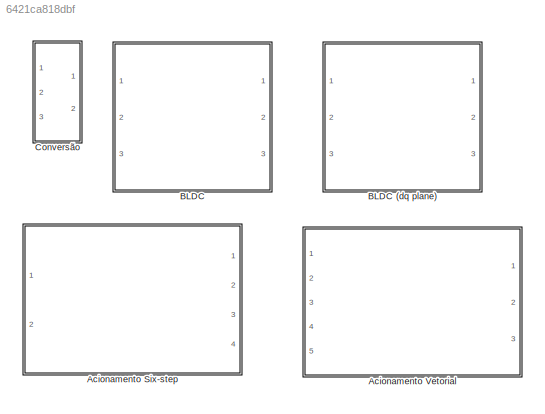
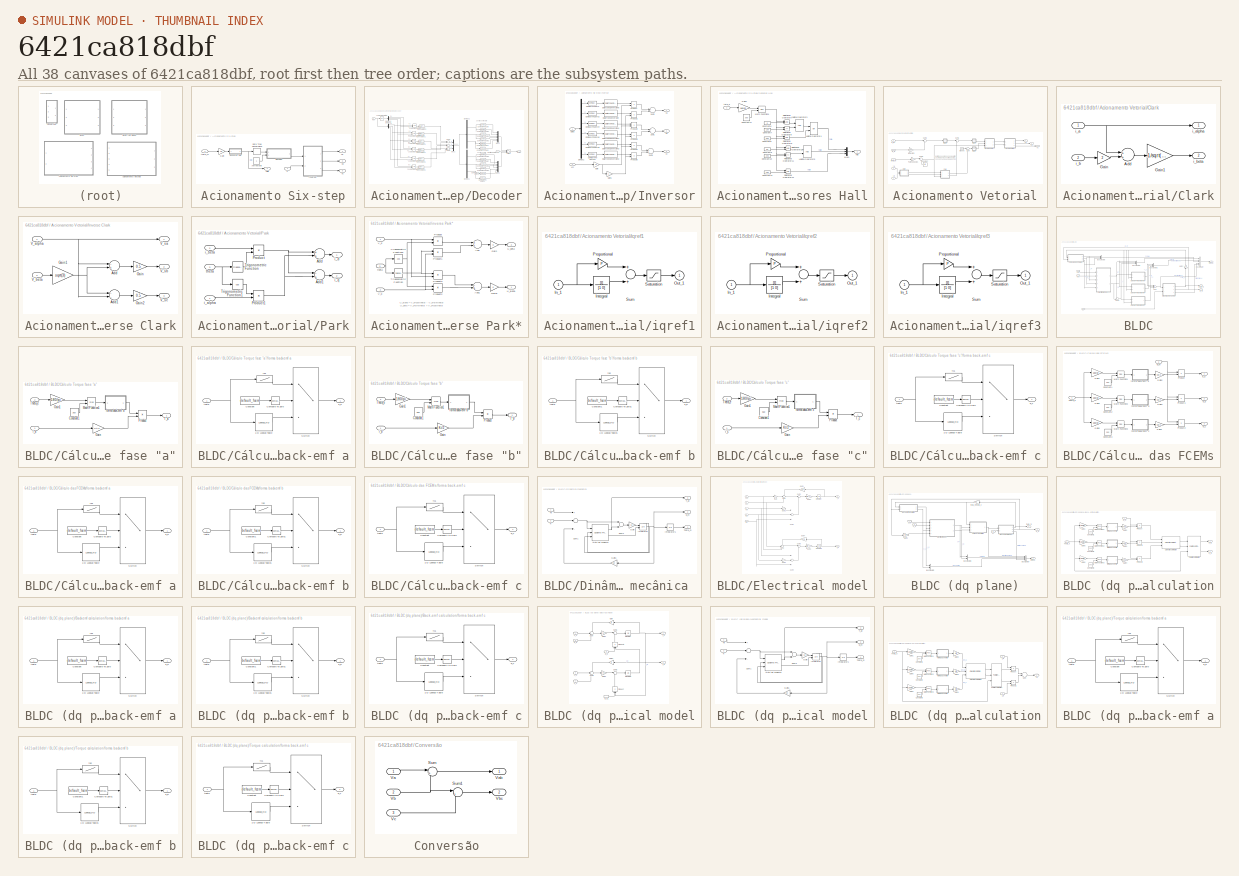
[diagram: thumbnail index - all 38 canvases of the model, root first then tree order]
MODEL slx_6421ca818dbf
KIND library
BLOCK [SubSystem] Acionamento Six-step
  FunctionWithSeparateData = off
  MaskHideContents = off
  MinAlgLoopOccurrences = off
  Opaque = off
  Ports = [2, 4]
  PropExecContextOutsideSubsystem = off
  RTWSystemCode = Auto
  RequestExecContextInheritance = off
BLOCK [Constant] Acionamento Six-step/Anti-horário
BLOCK [DataTypeConversion] Acionamento Six-step/Data Type Conversion3
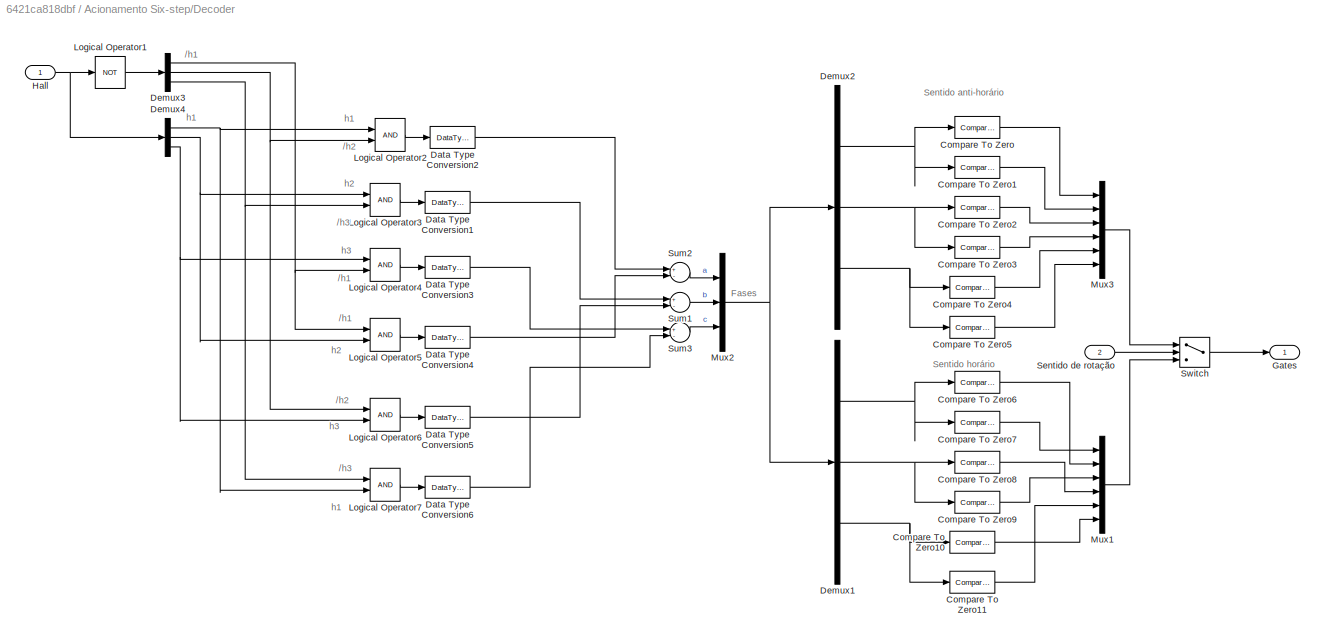
BLOCK [SubSystem] Acionamento Six-step/Decoder
  FunctionWithSeparateData = off
  MaskHideContents = off
  MinAlgLoopOccurrences = off
  Opaque = off
  Ports = [2, 1]
  PropExecContextOutsideSubsystem = off
  RTWSystemCode = Auto
  RequestExecContextInheritance = off
BLOCK [Reference] Acionamento Six-step/Decoder/Compare To Zero  REF=simulink/Logic and Bit
Operations/Compare
To Zero
  OutDataTypeStr = boolean
  Ports = [1, 1]
  SourceBlock = simulink/Logic and Bit\nOperations/Compare\nTo Zero
  SourceType = Compare To Zero
  ZeroCross = off
  relop = >
BLOCK [Reference] Acionamento Six-step/Decoder/Compare To Zero1  REF=simulink/Logic and Bit
Operations/Compare
To Zero
  OutDataTypeStr = boolean
  Ports = [1, 1]
  SourceBlock = simulink/Logic and Bit\nOperations/Compare\nTo Zero
  SourceType = Compare To Zero
  ZeroCross = off
  relop = <
BLOCK [Reference] Acionamento Six-step/Decoder/Compare To Zero10  REF=simulink/Logic and Bit
Operations/Compare
To Zero
  OutDataTypeStr = boolean
  Ports = [1, 1]
  SourceBlock = simulink/Logic and Bit\nOperations/Compare\nTo Zero
  SourceType = Compare To Zero
  ZeroCross = off
  relop = >
BLOCK [Reference] Acionamento Six-step/Decoder/Compare To Zero11  REF=simulink/Logic and Bit
Operations/Compare
To Zero
  OutDataTypeStr = boolean
  Ports = [1, 1]
  SourceBlock = simulink/Logic and Bit\nOperations/Compare\nTo Zero
  SourceType = Compare To Zero
  ZeroCross = off
  relop = <
BLOCK [Reference] Acionamento Six-step/Decoder/Compare To Zero2  REF=simulink/Logic and Bit
Operations/Compare
To Zero
  OutDataTypeStr = boolean
  Ports = [1, 1]
  SourceBlock = simulink/Logic and Bit\nOperations/Compare\nTo Zero
  SourceType = Compare To Zero
  ZeroCross = off
  relop = >
BLOCK [Reference] Acionamento Six-step/Decoder/Compare To Zero3  REF=simulink/Logic and Bit
Operations/Compare
To Zero
  OutDataTypeStr = boolean
  Ports = [1, 1]
  SourceBlock = simulink/Logic and Bit\nOperations/Compare\nTo Zero
  SourceType = Compare To Zero
  ZeroCross = off
  relop = <
BLOCK [Reference] Acionamento Six-step/Decoder/Compare To Zero4  REF=simulink/Logic and Bit
Operations/Compare
To Zero
  OutDataTypeStr = boolean
  Ports = [1, 1]
  SourceBlock = simulink/Logic and Bit\nOperations/Compare\nTo Zero
  SourceType = Compare To Zero
  ZeroCross = off
  relop = >
BLOCK [Reference] Acionamento Six-step/Decoder/Compare To Zero5  REF=simulink/Logic and Bit
Operations/Compare
To Zero
  OutDataTypeStr = boolean
  Ports = [1, 1]
  SourceBlock = simulink/Logic and Bit\nOperations/Compare\nTo Zero
  SourceType = Compare To Zero
  ZeroCross = off
  relop = <
BLOCK [Reference] Acionamento Six-step/Decoder/Compare To Zero6  REF=simulink/Logic and Bit
Operations/Compare
To Zero
  OutDataTypeStr = boolean
  Ports = [1, 1]
  SourceBlock = simulink/Logic and Bit\nOperations/Compare\nTo Zero
  SourceType = Compare To Zero
  ZeroCross = off
  relop = >
BLOCK [Reference] Acionamento Six-step/Decoder/Compare To Zero7  REF=simulink/Logic and Bit
Operations/Compare
To Zero
  OutDataTypeStr = boolean
  Ports = [1, 1]
  SourceBlock = simulink/Logic and Bit\nOperations/Compare\nTo Zero
  SourceType = Compare To Zero
  ZeroCross = off
  relop = <
BLOCK [Reference] Acionamento Six-step/Decoder/Compare To Zero8  REF=simulink/Logic and Bit
Operations/Compare
To Zero
  OutDataTypeStr = boolean
  Ports = [1, 1]
  SourceBlock = simulink/Logic and Bit\nOperations/Compare\nTo Zero
  SourceType = Compare To Zero
  ZeroCross = off
  relop = >
BLOCK [Reference] Acionamento Six-step/Decoder/Compare To Zero9  REF=simulink/Logic and Bit
Operations/Compare
To Zero
  OutDataTypeStr = boolean
  Ports = [1, 1]
  SourceBlock = simulink/Logic and Bit\nOperations/Compare\nTo Zero
  SourceType = Compare To Zero
  ZeroCross = off
  relop = <
BLOCK [DataTypeConversion] Acionamento Six-step/Decoder/Data Type Conversion1
  RndMeth = Floor
  SaturateOnIntegerOverflow = off
BLOCK [DataTypeConversion] Acionamento Six-step/Decoder/Data Type Conversion2
  RndMeth = Floor
  SaturateOnIntegerOverflow = off
BLOCK [DataTypeConversion] Acionamento Six-step/Decoder/Data Type Conversion3
  RndMeth = Floor
  SaturateOnIntegerOverflow = off
BLOCK [DataTypeConversion] Acionamento Six-step/Decoder/Data Type Conversion4
  RndMeth = Floor
  SaturateOnIntegerOverflow = off
BLOCK [DataTypeConversion] Acionamento Six-step/Decoder/Data Type Conversion5
  RndMeth = Floor
  SaturateOnIntegerOverflow = off
BLOCK [DataTypeConversion] Acionamento Six-step/Decoder/Data Type Conversion6
  RndMeth = Floor
  SaturateOnIntegerOverflow = off
BLOCK [Demux] Acionamento Six-step/Decoder/Demux1
  DisplayOption = bar
  Outputs = 3
  Ports = [1, 3]
BLOCK [Demux] Acionamento Six-step/Decoder/Demux2
  DisplayOption = bar
  Outputs = 3
  Ports = [1, 3]
BLOCK [Demux] Acionamento Six-step/Decoder/Demux3
  DisplayOption = bar
  Outputs = 3
  Ports = [1, 3]
BLOCK [Demux] Acionamento Six-step/Decoder/Demux4
  DisplayOption = bar
  Outputs = 3
  Ports = [1, 3]
BLOCK [Outport] Acionamento Six-step/Decoder/Gates
  IconDisplay = Port number
BLOCK [Inport] Acionamento Six-step/Decoder/Hall 
  IconDisplay = Port number
BLOCK [Logic] Acionamento Six-step/Decoder/Logical Operator1
  AllPortsSameDT = off
  Operator = NOT
  OutDataTypeStr = boolean
  Ports = [1, 1]
BLOCK [Logic] Acionamento Six-step/Decoder/Logical Operator2
  AllPortsSameDT = off
  OutDataTypeStr = boolean
  Ports = [2, 1]
BLOCK [Logic] Acionamento Six-step/Decoder/Logical Operator3
  AllPortsSameDT = off
  OutDataTypeStr = boolean
  Ports = [2, 1]
BLOCK [Logic] Acionamento Six-step/Decoder/Logical Operator4
  AllPortsSameDT = off
  OutDataTypeStr = boolean
  Ports = [2, 1]
BLOCK [Logic] Acionamento Six-step/Decoder/Logical Operator5
  AllPortsSameDT = off
  OutDataTypeStr = boolean
  Ports = [2, 1]
BLOCK [Logic] Acionamento Six-step/Decoder/Logical Operator6
  AllPortsSameDT = off
  OutDataTypeStr = boolean
  Ports = [2, 1]
BLOCK [Logic] Acionamento Six-step/Decoder/Logical Operator7
  AllPortsSameDT = off
  OutDataTypeStr = boolean
  Ports = [2, 1]
BLOCK [Mux] Acionamento Six-step/Decoder/Mux1
  DisplayOption = bar
  Inputs = 6
  Ports = [6, 1]
BLOCK [Mux] Acionamento Six-step/Decoder/Mux2
  DisplayOption = bar
  Inputs = 3
  Ports = [3, 1]
BLOCK [Mux] Acionamento Six-step/Decoder/Mux3
  DisplayOption = bar
  Inputs = 6
  Ports = [6, 1]
BLOCK [Inport] Acionamento Six-step/Decoder/Sentido de rotação
  IconDisplay = Port number
  Port = 2
BLOCK [Sum] Acionamento Six-step/Decoder/Sum1
  InputSameDT = off
  Inputs = +-
  OutDataTypeStr = double
  Ports = [2, 1]
  SaturateOnIntegerOverflow = off
BLOCK [Sum] Acionamento Six-step/Decoder/Sum2
  InputSameDT = off
  Inputs = +-
  OutDataTypeStr = double
  Ports = [2, 1]
  SaturateOnIntegerOverflow = off
BLOCK [Sum] Acionamento Six-step/Decoder/Sum3
  InputSameDT = off
  Inputs = +-
  OutDataTypeStr = double
  Ports = [2, 1]
  SaturateOnIntegerOverflow = off
BLOCK [Switch] Acionamento Six-step/Decoder/Switch
  Criteria = u2 > Threshold
  InputSameDT = off
  SaturateOnIntegerOverflow = off
BLOCK [Gain] Acionamento Six-step/Gain
  Gain = P/2
  OutDataTypeStr = Inherit: Inherit via internal rule
  ParamDataTypeStr = Inherit: Inherit via internal rule
  SaturateOnIntegerOverflow = off
BLOCK [Outport] Acionamento Six-step/Halls
  IconDisplay = Port number
  Port = 4
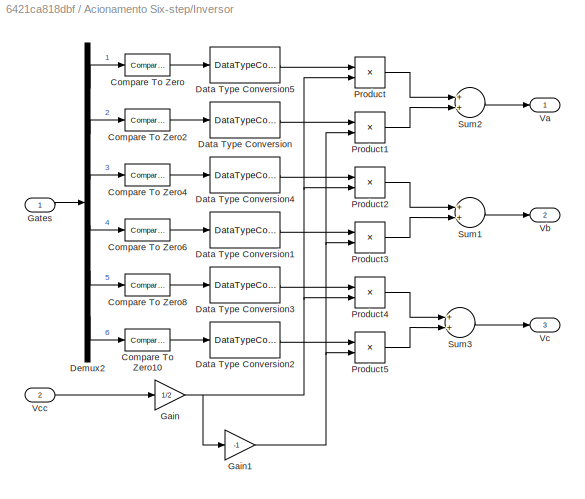
BLOCK [SubSystem] Acionamento Six-step/Inversor
  FunctionWithSeparateData = off
  MaskHideContents = off
  MinAlgLoopOccurrences = off
  Opaque = off
  Ports = [2, 3]
  PropExecContextOutsideSubsystem = off
  RTWSystemCode = Auto
  RequestExecContextInheritance = off
BLOCK [Reference] Acionamento Six-step/Inversor/Compare To Zero  REF=simulink/Logic and Bit
Operations/Compare
To Zero
  OutDataTypeStr = uint8
  Ports = [1, 1]
  SourceBlock = simulink/Logic and Bit\nOperations/Compare\nTo Zero
  SourceType = Compare To Zero
  ZeroCross = off
  relop = >
BLOCK [Reference] Acionamento Six-step/Inversor/Compare To Zero10  REF=simulink/Logic and Bit
Operations/Compare
To Zero
  OutDataTypeStr = boolean
  Ports = [1, 1]
  SourceBlock = simulink/Logic and Bit\nOperations/Compare\nTo Zero
  SourceType = Compare To Zero
  ZeroCross = off
  relop = >
BLOCK [Reference] Acionamento Six-step/Inversor/Compare To Zero2  REF=simulink/Logic and Bit
Operations/Compare
To Zero
  OutDataTypeStr = boolean
  Ports = [1, 1]
  SourceBlock = simulink/Logic and Bit\nOperations/Compare\nTo Zero
  SourceType = Compare To Zero
  ZeroCross = off
  relop = >
BLOCK [Reference] Acionamento Six-step/Inversor/Compare To Zero4  REF=simulink/Logic and Bit
Operations/Compare
To Zero
  OutDataTypeStr = uint8
  Ports = [1, 1]
  SourceBlock = simulink/Logic and Bit\nOperations/Compare\nTo Zero
  SourceType = Compare To Zero
  ZeroCross = off
  relop = >
BLOCK [Reference] Acionamento Six-step/Inversor/Compare To Zero6  REF=simulink/Logic and Bit
Operations/Compare
To Zero
  OutDataTypeStr = boolean
  Ports = [1, 1]
  SourceBlock = simulink/Logic and Bit\nOperations/Compare\nTo Zero
  SourceType = Compare To Zero
  ZeroCross = off
  relop = >
BLOCK [Reference] Acionamento Six-step/Inversor/Compare To Zero8  REF=simulink/Logic and Bit
Operations/Compare
To Zero
  OutDataTypeStr = boolean
  Ports = [1, 1]
  SourceBlock = simulink/Logic and Bit\nOperations/Compare\nTo Zero
  SourceType = Compare To Zero
  ZeroCross = off
  relop = >
BLOCK [DataTypeConversion] Acionamento Six-step/Inversor/Data Type Conversion
  OutDataTypeStr = double
  RndMeth = Floor
  SaturateOnIntegerOverflow = off
BLOCK [DataTypeConversion] Acionamento Six-step/Inversor/Data Type Conversion1
  OutDataTypeStr = double
  RndMeth = Floor
  SaturateOnIntegerOverflow = off
BLOCK [DataTypeConversion] Acionamento Six-step/Inversor/Data Type Conversion2
  OutDataTypeStr = double
  RndMeth = Floor
  SaturateOnIntegerOverflow = off
BLOCK [DataTypeConversion] Acionamento Six-step/Inversor/Data Type Conversion3
  OutDataTypeStr = double
  RndMeth = Floor
  SaturateOnIntegerOverflow = off
BLOCK [DataTypeConversion] Acionamento Six-step/Inversor/Data Type Conversion4
  OutDataTypeStr = double
  RndMeth = Floor
  SaturateOnIntegerOverflow = off
BLOCK [DataTypeConversion] Acionamento Six-step/Inversor/Data Type Conversion5
  OutDataTypeStr = double
  RndMeth = Floor
  SaturateOnIntegerOverflow = off
BLOCK [Demux] Acionamento Six-step/Inversor/Demux2
  DisplayOption = bar
  Outputs = 6
  Ports = [1, 6]
BLOCK [Gain] Acionamento Six-step/Inversor/Gain
  Gain = 1/2
  OutDataTypeStr = Inherit: Inherit via internal rule
  ParamDataTypeStr = Inherit: Inherit via internal rule
  SaturateOnIntegerOverflow = off
BLOCK [Gain] Acionamento Six-step/Inversor/Gain1
  Gain = -1
  OutDataTypeStr = Inherit: Inherit via internal rule
  ParamDataTypeStr = Inherit: Inherit via internal rule
  SaturateOnIntegerOverflow = off
BLOCK [Inport] Acionamento Six-step/Inversor/Gates
  IconDisplay = Port number
BLOCK [Product] Acionamento Six-step/Inversor/Product
  InputSameDT = off
  OutDataTypeStr = Inherit: Inherit via internal rule
  Ports = [2, 1]
  SaturateOnIntegerOverflow = off
BLOCK [Product] Acionamento Six-step/Inversor/Product1
  InputSameDT = off
  OutDataTypeStr = Inherit: Inherit via internal rule
  Ports = [2, 1]
  SaturateOnIntegerOverflow = off
BLOCK [Product] Acionamento Six-step/Inversor/Product2
  InputSameDT = off
  OutDataTypeStr = Inherit: Inherit via internal rule
  Ports = [2, 1]
  SaturateOnIntegerOverflow = off
BLOCK [Product] Acionamento Six-step/Inversor/Product3
  InputSameDT = off
  OutDataTypeStr = Inherit: Inherit via internal rule
  Ports = [2, 1]
  SaturateOnIntegerOverflow = off
BLOCK [Product] Acionamento Six-step/Inversor/Product4
  InputSameDT = off
  OutDataTypeStr = Inherit: Inherit via internal rule
  Ports = [2, 1]
  SaturateOnIntegerOverflow = off
BLOCK [Product] Acionamento Six-step/Inversor/Product5
  InputSameDT = off
  OutDataTypeStr = Inherit: Inherit via internal rule
  Ports = [2, 1]
  SaturateOnIntegerOverflow = off
BLOCK [Sum] Acionamento Six-step/Inversor/Sum1
  InputSameDT = off
  OutDataTypeStr = Inherit: Inherit via internal rule
  Ports = [2, 1]
BLOCK [Sum] Acionamento Six-step/Inversor/Sum2
  InputSameDT = off
  OutDataTypeStr = Inherit: Inherit via internal rule
  Ports = [2, 1]
BLOCK [Sum] Acionamento Six-step/Inversor/Sum3
  InputSameDT = off
  OutDataTypeStr = Inherit: Inherit via internal rule
  Ports = [2, 1]
BLOCK [Outport] Acionamento Six-step/Inversor/Va
  IconDisplay = Port number
BLOCK [Outport] Acionamento Six-step/Inversor/Vb
  IconDisplay = Port number
  Port = 2
BLOCK [Outport] Acionamento Six-step/Inversor/Vc
  IconDisplay = Port number
  Port = 3
BLOCK [Inport] Acionamento Six-step/Inversor/Vcc
  IconDisplay = Port number
  Port = 2
BLOCK [SubSystem] Acionamento Six-step/Sensores Hall
  FunctionWithSeparateData = off
  MaskHideContents = off
  MinAlgLoopOccurrences = off
  Opaque = off
  Ports = [1, 1]
  PropExecContextOutsideSubsystem = off
  RTWSystemCode = Auto
  RequestExecContextInheritance = off
BLOCK [Constant] Acionamento Six-step/Sensores Hall/Constant10
  Value = 240
BLOCK [Constant] Acionamento Six-step/Sensores Hall/Constant11
  Value = 360
BLOCK [Constant] Acionamento Six-step/Sensores Hall/Constant12
  Value = 180
BLOCK [Constant] Acionamento Six-step/Sensores Hall/Constant6
  Value = 0
BLOCK [Constant] Acionamento Six-step/Sensores Hall/Constant7
  Value = 120
BLOCK [Constant] Acionamento Six-step/Sensores Hall/Constant8
  Value = 300
BLOCK [Constant] Acionamento Six-step/Sensores Hall/Constant9
  Value = 60
BLOCK [Gain] Acionamento Six-step/Sensores Hall/Gain1
  Gain = 180/pi
  OutDataTypeStr = Inherit: Inherit via internal rule
  ParamDataTypeStr = Inherit: Inherit via internal rule
  SaturateOnIntegerOverflow = off
BLOCK [Outport] Acionamento Six-step/Sensores Hall/Hall
  IconDisplay = Port number
BLOCK [Logic] Acionamento Six-step/Sensores Hall/Logical Operator3
  AllPortsSameDT = off
  OutDataTypeStr = boolean
  Ports = [2, 1]
BLOCK [Logic] Acionamento Six-step/Sensores Hall/Logical Operator4
  AllPortsSameDT = off
  Operator = OR
  OutDataTypeStr = boolean
  Ports = [2, 1]
BLOCK [Logic] Acionamento Six-step/Sensores Hall/Logical Operator5
  AllPortsSameDT = off
  OutDataTypeStr = boolean
  Ports = [2, 1]
BLOCK [Math] Acionamento Six-step/Sensores Hall/Math Function1
  Operator = mod
  Ports = [2, 1]
BLOCK [Mux] Acionamento Six-step/Sensores Hall/Mux1
  DisplayOption = bar
  Inputs = 3
  Ports = [3, 1]
BLOCK [RelationalOperator] Acionamento Six-step/Sensores Hall/Relational Operator10
  Ports = [2, 1]
BLOCK [RelationalOperator] Acionamento Six-step/Sensores Hall/Relational Operator11
  Operator = <=
  Ports = [2, 1]
BLOCK [RelationalOperator] Acionamento Six-step/Sensores Hall/Relational Operator12
  Ports = [2, 1]
BLOCK [RelationalOperator] Acionamento Six-step/Sensores Hall/Relational Operator7
  Ports = [2, 1]
BLOCK [RelationalOperator] Acionamento Six-step/Sensores Hall/Relational Operator8
  Operator = <=
  Ports = [2, 1]
BLOCK [RelationalOperator] Acionamento Six-step/Sensores Hall/Relational Operator9
  Ports = [2, 1]
BLOCK [Inport] Acionamento Six-step/Sensores Hall/teta_e
  IconDisplay = Port number
BLOCK [Inport] Acionamento Six-step/V
  IconDisplay = Port number
BLOCK [Outport] Acionamento Six-step/Va
  IconDisplay = Port number
BLOCK [Outport] Acionamento Six-step/Vb
  IconDisplay = Port number
  Port = 2
BLOCK [Outport] Acionamento Six-step/Vc
  IconDisplay = Port number
  Port = 3
BLOCK [Inport] Acionamento Six-step/theta_m
  IconDisplay = Port number
  Port = 2
BLOCK [SubSystem] Acionamento Vetorial
  FunctionWithSeparateData = off
  MaskHideContents = off
  MinAlgLoopOccurrences = off
  Opaque = off
  Ports = [5, 3]
  PropExecContextOutsideSubsystem = off
  RTWSystemCode = Auto
  RequestExecContextInheritance = off
BLOCK [SubSystem] Acionamento Vetorial/Clark
  FunctionWithSeparateData = off
  MaskHideContents = off
  MinAlgLoopOccurrences = off
  Opaque = off
  Ports = [2, 2]
  PropExecContextOutsideSubsystem = off
  RTWSystemCode = Auto
  RequestExecContextInheritance = off
BLOCK [Sum] Acionamento Vetorial/Clark/Add
  InputSameDT = off
  OutDataTypeStr = Inherit: Inherit via internal rule
  Ports = [2, 1]
  SaturateOnIntegerOverflow = off
BLOCK [Gain] Acionamento Vetorial/Clark/Gain
  Gain = 2
  OutDataTypeStr = Inherit: Inherit via internal rule
  ParamDataTypeStr = Inherit: Inherit via internal rule
  SaturateOnIntegerOverflow = off
BLOCK [Gain] Acionamento Vetorial/Clark/Gain1
  Gain = 1/sqrt(3)
  OutDataTypeStr = Inherit: Inherit via internal rule
  ParamDataTypeStr = Inherit: Inherit via internal rule
  SaturateOnIntegerOverflow = off
BLOCK [Inport] Acionamento Vetorial/Clark/i_a
  IconDisplay = Port number
BLOCK [Outport] Acionamento Vetorial/Clark/i_alpha
  IconDisplay = Port number
BLOCK [Inport] Acionamento Vetorial/Clark/i_b
  IconDisplay = Port number
  Port = 2
BLOCK [Outport] Acionamento Vetorial/Clark/i_beta
  IconDisplay = Port number
  Port = 2
BLOCK [Constant] Acionamento Vetorial/Constant
  Value = -pi/2
BLOCK [Ground] Acionamento Vetorial/Ground
BLOCK [SubSystem] Acionamento Vetorial/Inverse Clark
  FunctionWithSeparateData = off
  MaskHideContents = off
  MinAlgLoopOccurrences = off
  Opaque = off
  Ports = [2, 3]
  PropExecContextOutsideSubsystem = off
  RTWSystemCode = Auto
  RequestExecContextInheritance = off
BLOCK [Sum] Acionamento Vetorial/Inverse Clark/Add
  InputSameDT = off
  Inputs = -+
  OutDataTypeStr = Inherit: Inherit via internal rule
  Ports = [2, 1]
  SaturateOnIntegerOverflow = off
BLOCK [Sum] Acionamento Vetorial/Inverse Clark/Add1
  InputSameDT = off
  Inputs = --
  OutDataTypeStr = Inherit: Inherit via internal rule
  Ports = [2, 1]
  SaturateOnIntegerOverflow = off
BLOCK [Gain] Acionamento Vetorial/Inverse Clark/Gain
  Gain = 0.5
  OutDataTypeStr = Inherit: Inherit via internal rule
  ParamDataTypeStr = Inherit: Inherit via internal rule
  SaturateOnIntegerOverflow = off
BLOCK [Gain] Acionamento Vetorial/Inverse Clark/Gain1
  Gain = sqrt(3)
  OutDataTypeStr = Inherit: Inherit via internal rule
  ParamDataTypeStr = Inherit: Inherit via internal rule
  SaturateOnIntegerOverflow = off
BLOCK [Gain] Acionamento Vetorial/Inverse Clark/Gain2
  Gain = 0.5
  OutDataTypeStr = Inherit: Inherit via internal rule
  ParamDataTypeStr = Inherit: Inherit via internal rule
  SaturateOnIntegerOverflow = off
BLOCK [Inport] Acionamento Vetorial/Inverse Clark/V_alpha
  IconDisplay = Port number
BLOCK [Inport] Acionamento Vetorial/Inverse Clark/V_beta
  IconDisplay = Port number
  Port = 2
BLOCK [Outport] Acionamento Vetorial/Inverse Clark/V_sa
  IconDisplay = Port number
BLOCK [Outport] Acionamento Vetorial/Inverse Clark/V_sb
  IconDisplay = Port number
  Port = 2
BLOCK [Outport] Acionamento Vetorial/Inverse Clark/V_sc
  IconDisplay = Port number
  Port = 3
BLOCK [Gain] Acionamento Vetorial/Pares de polos
  Gain = P/2
  OutDataTypeStr = Inherit: Inherit via internal rule
  ParamDataTypeStr = Inherit: Inherit via internal rule
  SaturateOnIntegerOverflow = off
BLOCK [SubSystem] Acionamento Vetorial/Park
  FunctionWithSeparateData = off
  MaskHideContents = off
  MinAlgLoopOccurrences = off
  Opaque = off
  Ports = [3, 2]
  PropExecContextOutsideSubsystem = off
  RTWSystemCode = Auto
  RequestExecContextInheritance = off
BLOCK [Sum] Acionamento Vetorial/Park/Add
  InputSameDT = off
  OutDataTypeStr = Inherit: Inherit via internal rule
  Ports = [2, 1]
  SaturateOnIntegerOverflow = off
BLOCK [Sum] Acionamento Vetorial/Park/Add1
  InputSameDT = off
  Inputs = -+
  OutDataTypeStr = Inherit: Inherit via internal rule
  Ports = [2, 1]
  SaturateOnIntegerOverflow = off
BLOCK [Product] Acionamento Vetorial/Park/Product
  InputSameDT = off
  OutDataTypeStr = Inherit: Inherit via internal rule
  Ports = [2, 1]
  SaturateOnIntegerOverflow = off
BLOCK [Product] Acionamento Vetorial/Park/Product1
  InputSameDT = off
  OutDataTypeStr = Inherit: Inherit via internal rule
  Ports = [2, 1]
  SaturateOnIntegerOverflow = off
BLOCK [Trigonometry] Acionamento Vetorial/Park/Trigonometric Function
  OutputSignalType = real
  Ports = [1, 1]
BLOCK [Trigonometry] Acionamento Vetorial/Park/Trigonometric Function1
  Operator = cos
  OutputSignalType = real
  Ports = [1, 1]
BLOCK [Inport] Acionamento Vetorial/Park/i_alpha
  IconDisplay = Port number
BLOCK [Inport] Acionamento Vetorial/Park/i_beta
  IconDisplay = Port number
  Port = 2
BLOCK [Outport] Acionamento Vetorial/Park/i_d
  IconDisplay = Port number
BLOCK [Outport] Acionamento Vetorial/Park/i_q
  IconDisplay = Port number
  Port = 2
BLOCK [Inport] Acionamento Vetorial/Park/theta
  IconDisplay = Port number
  Port = 3
BLOCK [Sum] Acionamento Vetorial/Sum
  IconShape = round
  InputSameDT = off
  Inputs = |+-
  OutDataTypeStr = Inherit: Inherit via internal rule
  Ports = [2, 1]
  SaturateOnIntegerOverflow = off
BLOCK [Sum] Acionamento Vetorial/Sum1
  IconShape = round
  InputSameDT = off
  Inputs = |+-
  OutDataTypeStr = Inherit: Inherit via internal rule
  Ports = [2, 1]
  SaturateOnIntegerOverflow = off
BLOCK [Sum] Acionamento Vetorial/Sum2
  IconShape = round
  InputSameDT = off
  Inputs = |+-
  OutDataTypeStr = Inherit: Inherit via internal rule
  Ports = [2, 1]
  SaturateOnIntegerOverflow = off
BLOCK [Sum] Acionamento Vetorial/Sum3
  IconShape = round
  InputSameDT = off
  Inputs = |++
  OutDataTypeStr = Inherit: Inherit via internal rule
  Ports = [2, 1]
  SaturateOnIntegerOverflow = off
BLOCK [Outport] Acionamento Vetorial/Va
  IconDisplay = Port number
BLOCK [Outport] Acionamento Vetorial/Vb
  IconDisplay = Port number
  Port = 2
BLOCK [Outport] Acionamento Vetorial/Vc
  IconDisplay = Port number
  Port = 3
BLOCK [Inport] Acionamento Vetorial/i_a
  IconDisplay = Port number
  Port = 4
BLOCK [Inport] Acionamento Vetorial/i_b
  IconDisplay = Port number
  Port = 5
BLOCK [SubSystem] Acionamento Vetorial/inverse Park*
  FunctionWithSeparateData = off
  MaskHideContents = off
  MinAlgLoopOccurrences = off
  Opaque = off
  Ports = [3, 2]
  PropExecContextOutsideSubsystem = off
  RTWSystemCode = Auto
  RequestExecContextInheritance = off
BLOCK [Sum] Acionamento Vetorial/inverse Park*/Add
  InputSameDT = off
  OutDataTypeStr = Inherit: Inherit via internal rule
  Ports = [2, 1]
  SaturateOnIntegerOverflow = off
BLOCK [Sum] Acionamento Vetorial/inverse Park*/Add1
  InputSameDT = off
  Inputs = -+
  OutDataTypeStr = Inherit: Inherit via internal rule
  Ports = [2, 1]
  SaturateOnIntegerOverflow = off
BLOCK [Gain] Acionamento Vetorial/inverse Park*/Gain
  OutDataTypeStr = Inherit: Inherit via internal rule
  ParamDataTypeStr = Inherit: Inherit via internal rule
  SaturateOnIntegerOverflow = off
BLOCK [Gain] Acionamento Vetorial/inverse Park*/Gain1
  OutDataTypeStr = Inherit: Inherit via internal rule
  ParamDataTypeStr = Inherit: Inherit via internal rule
  SaturateOnIntegerOverflow = off
BLOCK [Product] Acionamento Vetorial/inverse Park*/Product
  InputSameDT = off
  OutDataTypeStr = Inherit: Inherit via internal rule
  Ports = [2, 1]
  SaturateOnIntegerOverflow = off
BLOCK [Product] Acionamento Vetorial/inverse Park*/Product1
  InputSameDT = off
  OutDataTypeStr = Inherit: Inherit via internal rule
  Ports = [2, 1]
  SaturateOnIntegerOverflow = off
BLOCK [Product] Acionamento Vetorial/inverse Park*/Product2
  InputSameDT = off
  OutDataTypeStr = Inherit: Inherit via internal rule
  Ports = [2, 1]
  SaturateOnIntegerOverflow = off
BLOCK [Product] Acionamento Vetorial/inverse Park*/Product3
  InputSameDT = off
  OutDataTypeStr = Inherit: Inherit via internal rule
  Ports = [2, 1]
  SaturateOnIntegerOverflow = off
BLOCK [Trigonometry] Acionamento Vetorial/inverse Park*/Trigonometric Function
  OutputSignalType = real
  Ports = [1, 1]
BLOCK [Trigonometry] Acionamento Vetorial/inverse Park*/Trigonometric Function1
  Operator = cos
  OutputSignalType = real
  Ports = [1, 1]
BLOCK [Outport] Acionamento Vetorial/inverse Park*/U_alpha
  IconDisplay = Port number
BLOCK [Outport] Acionamento Vetorial/inverse Park*/U_beta
  IconDisplay = Port number
  Port = 2
BLOCK [Inport] Acionamento Vetorial/inverse Park*/V_d
  IconDisplay = Port number
  Port = 2
BLOCK [Inport] Acionamento Vetorial/inverse Park*/V_q
  IconDisplay = Port number
BLOCK [Inport] Acionamento Vetorial/inverse Park*/theta
  IconDisplay = Port number
  Port = 3
BLOCK [SubSystem] Acionamento Vetorial/iqref1
  FunctionWithSeparateData = off
  MaskHideContents = off
  MinAlgLoopOccurrences = off
  Opaque = off
  Ports = [1, 1]
  PropExecContextOutsideSubsystem = off
  RTWSystemCode = Auto
  RequestExecContextInheritance = off
BLOCK [Inport] Acionamento Vetorial/iqref1/In_1
  IconDisplay = Port number
BLOCK [TransferFcn] Acionamento Vetorial/iqref1/Integral
  Denominator = [1 0]
  Numerator = [I]
BLOCK [Outport] Acionamento Vetorial/iqref1/Out_1
  IconDisplay = Port number
  InitialOutput = 0
BLOCK [Gain] Acionamento Vetorial/iqref1/Proportional
  Gain = P
BLOCK [Saturate] Acionamento Vetorial/iqref1/Saturation
  InputPortMap = u0
  LowerLimit = min
  Ports = [1, 1]
  UpperLimit = max
BLOCK [Sum] Acionamento Vetorial/iqref1/Sum
  Ports = [2, 1]
BLOCK [SubSystem] Acionamento Vetorial/iqref2
  FunctionWithSeparateData = off
  MaskHideContents = off
  MinAlgLoopOccurrences = off
  Opaque = off
  Ports = [1, 1]
  PropExecContextOutsideSubsystem = off
  RTWSystemCode = Auto
  RequestExecContextInheritance = off
BLOCK [Inport] Acionamento Vetorial/iqref2/In_1
  IconDisplay = Port number
BLOCK [TransferFcn] Acionamento Vetorial/iqref2/Integral
  Denominator = [1 0]
  Numerator = [I]
BLOCK [Outport] Acionamento Vetorial/iqref2/Out_1
  IconDisplay = Port number
  InitialOutput = 0
BLOCK [Gain] Acionamento Vetorial/iqref2/Proportional
  Gain = P
BLOCK [Saturate] Acionamento Vetorial/iqref2/Saturation
  InputPortMap = u0
  LowerLimit = min
  Ports = [1, 1]
  UpperLimit = max
BLOCK [Sum] Acionamento Vetorial/iqref2/Sum
  Ports = [2, 1]
BLOCK [SubSystem] Acionamento Vetorial/iqref3
  FunctionWithSeparateData = off
  MaskHideContents = off
  MinAlgLoopOccurrences = off
  Opaque = off
  Ports = [1, 1]
  PropExecContextOutsideSubsystem = off
  RTWSystemCode = Auto
  RequestExecContextInheritance = off
BLOCK [Inport] Acionamento Vetorial/iqref3/In_1
  IconDisplay = Signal name
BLOCK [TransferFcn] Acionamento Vetorial/iqref3/Integral
  Denominator = [1 0]
  Numerator = [I]
BLOCK [Outport] Acionamento Vetorial/iqref3/Out_1
  IconDisplay = Port number
  InitialOutput = 0
BLOCK [Gain] Acionamento Vetorial/iqref3/Proportional
  Gain = P
BLOCK [Saturate] Acionamento Vetorial/iqref3/Saturation
  InputPortMap = u0
  LowerLimit = min
  Ports = [1, 1]
  UpperLimit = max
BLOCK [Sum] Acionamento Vetorial/iqref3/Sum
  Ports = [2, 1]
BLOCK [Gain] Acionamento Vetorial/rad//s -> rpm
  Gain = 60/(2*pi)
  OutDataTypeStr = Inherit: Inherit via internal rule
  ParamDataTypeStr = Inherit: Inherit via internal rule
  SaturateOnIntegerOverflow = off
BLOCK [Inport] Acionamento Vetorial/theta_m
  IconDisplay = Port number
  Port = 2
BLOCK [Inport] Acionamento Vetorial/w_m
  IconDisplay = Port number
  Port = 3
BLOCK [Inport] Acionamento Vetorial/w_ref
  IconDisplay = Port number
BLOCK [SubSystem] BLDC
  FunctionWithSeparateData = off
  MaskHideContents = off
  MinAlgLoopOccurrences = off
  Opaque = off
  Ports = [3, 3]
  PropExecContextOutsideSubsystem = off
  RTWSystemCode = Auto
  RequestExecContextInheritance = off
BLOCK [SubSystem] BLDC (dq plane)
  FunctionWithSeparateData = off
  MaskHideContents = off
  MinAlgLoopOccurrences = off
  Opaque = off
  Ports = [3, 3]
  PropExecContextOutsideSubsystem = off
  RTWSystemCode = Auto
  RequestExecContextInheritance = off
BLOCK [SubSystem] BLDC (dq plane)/Back-emf calculation
  FunctionWithSeparateData = off
  MaskHideContents = off
  MinAlgLoopOccurrences = off
  Opaque = off
  Ports = [2, 2]
  PropExecContextOutsideSubsystem = off
  RTWSystemCode = Auto
  RequestExecContextInheritance = off
BLOCK [Reference] BLDC (dq plane)/Back-emf calculation/Clarke transformation  REF=Tools/Clarke transformation
  Ports = [3, 2]
  SourceBlock = Tools/Clarke transformation
  SourceType = SubSystem
BLOCK [Constant] BLDC (dq plane)/Back-emf calculation/Constant1
  Value = 360
BLOCK [Constant] BLDC (dq plane)/Back-emf calculation/Constant2
  Value = 360
BLOCK [Constant] BLDC (dq plane)/Back-emf calculation/Constant3
  Value = 360
BLOCK [Gain] BLDC (dq plane)/Back-emf calculation/Gain1
  Gain = 180/pi
  OutDataTypeStr = Inherit: Inherit via internal rule
  ParamDataTypeStr = Inherit: Inherit via internal rule
  SaturateOnIntegerOverflow = off
BLOCK [Gain] BLDC (dq plane)/Back-emf calculation/Gain2
  Gain = Ke/2
  OutDataTypeStr = Inherit: Inherit via internal rule
  ParamDataTypeStr = Inherit: Inherit via internal rule
  SaturateOnIntegerOverflow = off
BLOCK [Gain] BLDC (dq plane)/Back-emf calculation/Gain3
  Gain = Ke/2
  OutDataTypeStr = Inherit: Inherit via internal rule
  ParamDataTypeStr = Inherit: Inherit via internal rule
  SaturateOnIntegerOverflow = off
BLOCK [Gain] BLDC (dq plane)/Back-emf calculation/Gain4
  Gain = Ke/2
  OutDataTypeStr = Inherit: Inherit via internal rule
  ParamDataTypeStr = Inherit: Inherit via internal rule
  SaturateOnIntegerOverflow = off
BLOCK [Gain] BLDC (dq plane)/Back-emf calculation/Gain5
  Gain = 180/pi
  OutDataTypeStr = Inherit: Inherit via internal rule
  ParamDataTypeStr = Inherit: Inherit via internal rule
  SaturateOnIntegerOverflow = off
BLOCK [Gain] BLDC (dq plane)/Back-emf calculation/Gain6
  Gain = 180/pi
  OutDataTypeStr = Inherit: Inherit via internal rule
  ParamDataTypeStr = Inherit: Inherit via internal rule
  SaturateOnIntegerOverflow = off
BLOCK [Math] BLDC (dq plane)/Back-emf calculation/Math Function1
  Operator = mod
  Ports = [2, 1]
BLOCK [Math] BLDC (dq plane)/Back-emf calculation/Math Function2
  Operator = mod
  Ports = [2, 1]
BLOCK [Math] BLDC (dq plane)/Back-emf calculation/Math Function3
  Operator = mod
  Ports = [2, 1]
BLOCK [Reference] BLDC (dq plane)/Back-emf calculation/Park transformation   REF=Tools/Park transformation 
  Ports = [3, 2]
  SourceBlock = Tools/Park transformation
  SourceType = SubSystem
BLOCK [Product] BLDC (dq plane)/Back-emf calculation/Product
  InputSameDT = off
  OutDataTypeStr = Inherit: Inherit via internal rule
  Ports = [2, 1]
  SaturateOnIntegerOverflow = off
BLOCK [Product] BLDC (dq plane)/Back-emf calculation/Product1
  InputSameDT = off
  OutDataTypeStr = Inherit: Inherit via internal rule
  Ports = [2, 1]
  SaturateOnIntegerOverflow = off
BLOCK [Product] BLDC (dq plane)/Back-emf calculation/Product2
  InputSameDT = off
  OutDataTypeStr = Inherit: Inherit via internal rule
  Ports = [2, 1]
  SaturateOnIntegerOverflow = off
BLOCK [Inport] BLDC (dq plane)/Back-emf calculation/Theta_e
  IconDisplay = Port number
BLOCK [Outport] BLDC (dq plane)/Back-emf calculation/e_d
  IconDisplay = Port number
BLOCK [Outport] BLDC (dq plane)/Back-emf calculation/e_q
  IconDisplay = Port number
  Port = 2
BLOCK [SubSystem] BLDC (dq plane)/Back-emf calculation/forma back-emf a
  FunctionWithSeparateData = off
  MaskHideContents = off
  MinAlgLoopOccurrences = off
  Opaque = off
  Ports = [1, 1]
  PropExecContextOutsideSubsystem = off
  RTWSystemCode = Auto
  RequestExecContextInheritance = off
BLOCK [Lookup_n-D] BLDC (dq plane)/Back-emf calculation/forma back-emf a/1-D Lookup Table
  BreakpointsForDimension1 = fcem_a(:,1)
  NumberOfTableDimensions = 1
  Ports = [1, 1]
  RndMeth = Simplest
  Table = fcem_a(:,2)
BLOCK [Reference] BLDC (dq plane)/Back-emf calculation/forma back-emf a/Compare To Zero  REF=simulink/Logic and Bit
Operations/Compare
To Zero
  OutDataTypeStr = boolean
  Ports = [1, 1]
  SourceBlock = simulink/Logic and Bit\nOperations/Compare\nTo Zero
  SourceType = Compare To Zero
  ZeroCross = on
  relop = >
BLOCK [Constant] BLDC (dq plane)/Back-emf calculation/forma back-emf a/Constant
  Value = default_fcem
BLOCK [Switch] BLDC (dq plane)/Back-emf calculation/forma back-emf a/Switch
  InputSameDT = off
  SaturateOnIntegerOverflow = off
BLOCK [Outport] BLDC (dq plane)/Back-emf calculation/forma back-emf a/e_a
  IconDisplay = Port number
BLOCK [Lookup] BLDC (dq plane)/Back-emf calculation/forma back-emf a/fa1
  InputValues = [0 30 60 90 120 150 180 210 240 270 300 330 360]
  SaturateOnIntegerOverflow = off
  Table = [ 1 1 1 0 -1 -1 -1 -1 -1 0 1 1 1]
BLOCK [Inport] BLDC (dq plane)/Back-emf calculation/forma back-emf a/theta
  IconDisplay = Port number
BLOCK [SubSystem] BLDC (dq plane)/Back-emf calculation/forma back-emf b
  FunctionWithSeparateData = off
  MaskHideContents = off
  MinAlgLoopOccurrences = off
  Opaque = off
  Ports = [1, 1]
  PropExecContextOutsideSubsystem = off
  RTWSystemCode = Auto
  RequestExecContextInheritance = off
BLOCK [Lookup_n-D] BLDC (dq plane)/Back-emf calculation/forma back-emf b/1-D Lookup Table1
  BreakpointsForDimension1 = fcem_b(:,1)
  NumberOfTableDimensions = 1
  Ports = [1, 1]
  RndMeth = Simplest
  Table = fcem_b(:,2)
BLOCK [Reference] BLDC (dq plane)/Back-emf calculation/forma back-emf b/Compare To Zero1  REF=simulink/Logic and Bit
Operations/Compare
To Zero
  OutDataTypeStr = boolean
  Ports = [1, 1]
  SourceBlock = simulink/Logic and Bit\nOperations/Compare\nTo Zero
  SourceType = Compare To Zero
  ZeroCross = on
  relop = >
BLOCK [Constant] BLDC (dq plane)/Back-emf calculation/forma back-emf b/Constant1
  Value = default_fcem
BLOCK [Switch] BLDC (dq plane)/Back-emf calculation/forma back-emf b/Switch
  InputSameDT = off
  SaturateOnIntegerOverflow = off
BLOCK [Outport] BLDC (dq plane)/Back-emf calculation/forma back-emf b/e_b
  IconDisplay = Port number
BLOCK [Lookup] BLDC (dq plane)/Back-emf calculation/forma back-emf b/fb2
  InputValues = [0 30 60 90 120 150 180 210 240 270 300 330 360]
  SaturateOnIntegerOverflow = off
  Table = [-1 0 1 1 1 1 1 0 -1 -1 -1 -1 -1]
BLOCK [Inport] BLDC (dq plane)/Back-emf calculation/forma back-emf b/theta
  IconDisplay = Port number
BLOCK [SubSystem] BLDC (dq plane)/Back-emf calculation/forma back-emf c
  FunctionWithSeparateData = off
  MaskHideContents = off
  MinAlgLoopOccurrences = off
  Opaque = off
  Ports = [1, 1]
  PropExecContextOutsideSubsystem = off
  RTWSystemCode = Auto
  RequestExecContextInheritance = off
BLOCK [Lookup_n-D] BLDC (dq plane)/Back-emf calculation/forma back-emf c/1-D Lookup Table
  BreakpointsForDimension1 = fcem_c(:,1)
  NumberOfTableDimensions = 1
  Ports = [1, 1]
  RndMeth = Simplest
  Table = fcem_c(:,2)
BLOCK [Reference] BLDC (dq plane)/Back-emf calculation/forma back-emf c/Compare To Zero  REF=simulink/Logic and Bit
Operations/Compare
To Zero
  OutDataTypeStr = boolean
  Ports = [1, 1]
  SourceBlock = simulink/Logic and Bit\nOperations/Compare\nTo Zero
  SourceType = Compare To Zero
  ZeroCross = on
  relop = >
BLOCK [Constant] BLDC (dq plane)/Back-emf calculation/forma back-emf c/Constant
  Value = default_fcem
BLOCK [Switch] BLDC (dq plane)/Back-emf calculation/forma back-emf c/Switch
  InputSameDT = off
  SaturateOnIntegerOverflow = off
BLOCK [Outport] BLDC (dq plane)/Back-emf calculation/forma back-emf c/e_c
  IconDisplay = Port number
BLOCK [Lookup] BLDC (dq plane)/Back-emf calculation/forma back-emf c/fc1
  InputValues = [0 30 60 90 120 150 180 210 240 270 300 330 360]
  SaturateOnIntegerOverflow = off
  Table = [-1 -1 -1 -1 -1 0 1 1 1 1 1 0 -1]
BLOCK [Inport] BLDC (dq plane)/Back-emf calculation/forma back-emf c/theta
  IconDisplay = Port number
BLOCK [Inport] BLDC (dq plane)/Back-emf calculation/w_m
  IconDisplay = Port number
  Port = 2
BLOCK [BusCreator] BLDC (dq plane)/Bus Creator
  DisplayOption = bar
  Ports = [4, 1]
BLOCK [BusCreator] BLDC (dq plane)/Bus Creator1
  DisplayOption = bar
  Inputs = 2
  Ports = [2, 1]
BLOCK [BusCreator] BLDC (dq plane)/Bus Creator2
  DisplayOption = bar
  Inputs = 2
  Ports = [2, 1]
BLOCK [SubSystem] BLDC (dq plane)/Electrical model
  FunctionWithSeparateData = off
  MaskHideContents = off
  MinAlgLoopOccurrences = off
  Opaque = off
  Ports = [5, 2]
  PropExecContextOutsideSubsystem = off
  RTWSystemCode = Auto
  RequestExecContextInheritance = off
BLOCK [Gain] BLDC (dq plane)/Electrical model/Gain
  Gain = R
  OutDataTypeStr = Inherit: Inherit via internal rule
  ParamDataTypeStr = Inherit: Inherit via internal rule
  SaturateOnIntegerOverflow = off
BLOCK [Gain] BLDC (dq plane)/Electrical model/Gain1
  Gain = 1/L
  OutDataTypeStr = Inherit: Inherit via internal rule
  ParamDataTypeStr = Inherit: Inherit via internal rule
  SaturateOnIntegerOverflow = off
BLOCK [Gain] BLDC (dq plane)/Electrical model/Gain2
  Gain = R
  OutDataTypeStr = Inherit: Inherit via internal rule
  ParamDataTypeStr = Inherit: Inherit via internal rule
  SaturateOnIntegerOverflow = off
BLOCK [Gain] BLDC (dq plane)/Electrical model/Gain3
  Gain = 1/L
  OutDataTypeStr = Inherit: Inherit via internal rule
  ParamDataTypeStr = Inherit: Inherit via internal rule
  SaturateOnIntegerOverflow = off
BLOCK [Integrator] BLDC (dq plane)/Electrical model/Integrator
  Ports = [1, 1]
BLOCK [Integrator] BLDC (dq plane)/Electrical model/Integrator1
  Ports = [1, 1]
BLOCK [Product] BLDC (dq plane)/Electrical model/Product
  InputSameDT = off
  OutDataTypeStr = Inherit: Inherit via internal rule
  Ports = [2, 1]
  SaturateOnIntegerOverflow = off
BLOCK [Product] BLDC (dq plane)/Electrical model/Product1
  InputSameDT = off
  OutDataTypeStr = Inherit: Inherit via internal rule
  Ports = [2, 1]
  SaturateOnIntegerOverflow = off
BLOCK [Sum] BLDC (dq plane)/Electrical model/Sum
  IconShape = round
  InputSameDT = off
  Inputs = -+-
  OutDataTypeStr = Inherit: Inherit via internal rule
  Ports = [3, 1]
  SaturateOnIntegerOverflow = off
BLOCK [Sum] BLDC (dq plane)/Electrical model/Sum1
  IconShape = round
  InputSameDT = off
  Inputs = |++
  OutDataTypeStr = Inherit: Inherit via internal rule
  Ports = [2, 1]
  SaturateOnIntegerOverflow = off
BLOCK [Sum] BLDC (dq plane)/Electrical model/Sum2
  IconShape = round
  InputSameDT = off
  Inputs = -+-
  OutDataTypeStr = Inherit: Inherit via internal rule
  Ports = [3, 1]
  SaturateOnIntegerOverflow = off
BLOCK [Sum] BLDC (dq plane)/Electrical model/Sum3
  IconShape = round
  InputSameDT = off
  Inputs = |+-
  OutDataTypeStr = Inherit: Inherit via internal rule
  Ports = [2, 1]
  SaturateOnIntegerOverflow = off
BLOCK [Inport] BLDC (dq plane)/Electrical model/e_d
  IconDisplay = Port number
  Port = 3
BLOCK [Inport] BLDC (dq plane)/Electrical model/e_q
  IconDisplay = Port number
  Port = 4
BLOCK [Outport] BLDC (dq plane)/Electrical model/i_d
  IconDisplay = Port number
BLOCK [Outport] BLDC (dq plane)/Electrical model/i_q
  IconDisplay = Port number
  Port = 2
BLOCK [Inport] BLDC (dq plane)/Electrical model/u_d
  IconDisplay = Port number
BLOCK [Inport] BLDC (dq plane)/Electrical model/u_q
  IconDisplay = Port number
  Port = 2
BLOCK [Inport] BLDC (dq plane)/Electrical model/w_e
  IconDisplay = Port number
  Port = 5
BLOCK [InportShadow] BLDC (dq plane)/Electrical model/w_e1
  IconDisplay = Port number
  LatchByDelayingOutsideSignal = off
  LatchInputForFeedbackSignals = off
  Port = 5
BLOCK [Gain] BLDC (dq plane)/Gain1
  Gain = P/2
  OutDataTypeStr = Inherit: Inherit via internal rule
  ParamDataTypeStr = Inherit: Inherit via internal rule
  SaturateOnIntegerOverflow = off
BLOCK [SubSystem] BLDC (dq plane)/Mechanical model
  FunctionWithSeparateData = off
  MaskHideContents = off
  MinAlgLoopOccurrences = off
  Opaque = off
  Ports = [2, 3]
  PropExecContextOutsideSubsystem = off
  RTWSystemCode = Auto
  RequestExecContextInheritance = off
BLOCK [Reference] BLDC (dq plane)/Mechanical model/Atrito de coulomb  REF=Tools/Coulomb Friction
  F_slip = F_slip
  F_stick = F_stick
  Ports = [3, 2]
  SourceBlock = Tools/Coulomb Friction
  SourceType = Modelo de atrito de Coulomb
BLOCK [Gain] BLDC (dq plane)/Mechanical model/Gain
  Gain = 1/J
  OutDataTypeStr = Inherit: Inherit via internal rule
  ParamDataTypeStr = Inherit: Inherit via internal rule
  SaturateOnIntegerOverflow = off
BLOCK [Gain] BLDC (dq plane)/Mechanical model/Gain1
  Gain = Kd
  OutDataTypeStr = Inherit: Inherit via internal rule
  ParamDataTypeStr = Inherit: Inherit via internal rule
  SaturateOnIntegerOverflow = off
BLOCK [Integrator] BLDC (dq plane)/Mechanical model/Integrator
  ExternalReset = rising
  Ports = [2, 1, 0, 0, 1]
  ShowStatePort = on
BLOCK [Integrator] BLDC (dq plane)/Mechanical model/Integrator1
  Ports = [1, 1]
BLOCK [Sum] BLDC (dq plane)/Mechanical model/Sum1
  InputSameDT = off
  Inputs = +--
  OutDataTypeStr = Inherit: Inherit via internal rule
  Ports = [3, 1]
  SaturateOnIntegerOverflow = off
BLOCK [Sum] BLDC (dq plane)/Mechanical model/Sum2
  InputSameDT = off
  Inputs = +-
  OutDataTypeStr = Inherit: Inherit via internal rule
  Ports = [2, 1]
  SaturateOnIntegerOverflow = off
BLOCK [Outport] BLDC (dq plane)/Mechanical model/T_at
  IconDisplay = Port number
  Port = 3
BLOCK [Inport] BLDC (dq plane)/Mechanical model/Te
  IconDisplay = Port number
BLOCK [Outport] BLDC (dq plane)/Mechanical model/Theta_m
  IconDisplay = Port number
BLOCK [Inport] BLDC (dq plane)/Mechanical model/Tl
  IconDisplay = Port number
  Port = 2
BLOCK [Outport] BLDC (dq plane)/Mechanical model/w_m
  IconDisplay = Port number
  Port = 2
BLOCK [Inport] BLDC (dq plane)/Tl
  IconDisplay = Port number
  Port = 3
BLOCK [SubSystem] BLDC (dq plane)/Torque calculation
  FunctionWithSeparateData = off
  MaskHideContents = off
  MinAlgLoopOccurrences = off
  Opaque = off
  Ports = [3, 1]
  PropExecContextOutsideSubsystem = off
  RTWSystemCode = Auto
  RequestExecContextInheritance = off
BLOCK [Reference] BLDC (dq plane)/Torque calculation/Clarke transformation  REF=Tools/Clarke transformation
  Ports = [3, 2]
  SourceBlock = Tools/Clarke transformation
  SourceType = SubSystem
BLOCK [Constant] BLDC (dq plane)/Torque calculation/Constant1
  Value = 360
BLOCK [Constant] BLDC (dq plane)/Torque calculation/Constant2
  Value = 360
BLOCK [Constant] BLDC (dq plane)/Torque calculation/Constant3
  Value = 360
BLOCK [Gain] BLDC (dq plane)/Torque calculation/Gain1
  Gain = 180/pi
  OutDataTypeStr = Inherit: Inherit via internal rule
  ParamDataTypeStr = Inherit: Inherit via internal rule
  SaturateOnIntegerOverflow = off
BLOCK [Gain] BLDC (dq plane)/Torque calculation/Gain2
  Gain = Kt/2
  OutDataTypeStr = Inherit: Inherit via internal rule
  ParamDataTypeStr = Inherit: Inherit via internal rule
  SaturateOnIntegerOverflow = off
BLOCK [Gain] BLDC (dq plane)/Torque calculation/Gain3
  Gain = Kt/2
  OutDataTypeStr = Inherit: Inherit via internal rule
  ParamDataTypeStr = Inherit: Inherit via internal rule
  SaturateOnIntegerOverflow = off
BLOCK [Gain] BLDC (dq plane)/Torque calculation/Gain4
  Gain = Kt/2
  OutDataTypeStr = Inherit: Inherit via internal rule
  ParamDataTypeStr = Inherit: Inherit via internal rule
  SaturateOnIntegerOverflow = off
BLOCK [Gain] BLDC (dq plane)/Torque calculation/Gain5
  Gain = 180/pi
  OutDataTypeStr = Inherit: Inherit via internal rule
  ParamDataTypeStr = Inherit: Inherit via internal rule
  SaturateOnIntegerOverflow = off
BLOCK [Gain] BLDC (dq plane)/Torque calculation/Gain6
  Gain = 180/pi
  OutDataTypeStr = Inherit: Inherit via internal rule
  ParamDataTypeStr = Inherit: Inherit via internal rule
  SaturateOnIntegerOverflow = off
BLOCK [Math] BLDC (dq plane)/Torque calculation/Math Function1
  Operator = mod
  Ports = [2, 1]
BLOCK [Math] BLDC (dq plane)/Torque calculation/Math Function2
  Operator = mod
  Ports = [2, 1]
BLOCK [Math] BLDC (dq plane)/Torque calculation/Math Function3
  Operator = mod
  Ports = [2, 1]
BLOCK [Reference] BLDC (dq plane)/Torque calculation/Park transformation   REF=Tools/Park transformation 
  Ports = [3, 2]
  SourceBlock = Tools/Park transformation
  SourceType = SubSystem
BLOCK [Product] BLDC (dq plane)/Torque calculation/Product
  InputSameDT = off
  OutDataTypeStr = Inherit: Inherit via internal rule
  Ports = [2, 1]
  SaturateOnIntegerOverflow = off
BLOCK [Product] BLDC (dq plane)/Torque calculation/Product1
  InputSameDT = off
  OutDataTypeStr = Inherit: Inherit via internal rule
  Ports = [2, 1]
  SaturateOnIntegerOverflow = off
BLOCK [Sum] BLDC (dq plane)/Torque calculation/Sum
  InputSameDT = off
  OutDataTypeStr = Inherit: Inherit via internal rule
  Ports = [2, 1]
  SaturateOnIntegerOverflow = off
BLOCK [Outport] BLDC (dq plane)/Torque calculation/Te
  IconDisplay = Port number
BLOCK [Inport] BLDC (dq plane)/Torque calculation/Theta_e
  IconDisplay = Port number
BLOCK [SubSystem] BLDC (dq plane)/Torque calculation/forma back-emf a
  FunctionWithSeparateData = off
  MaskHideContents = off
  MinAlgLoopOccurrences = off
  Opaque = off
  Ports = [1, 1]
  PropExecContextOutsideSubsystem = off
  RTWSystemCode = Auto
  RequestExecContextInheritance = off
BLOCK [Lookup_n-D] BLDC (dq plane)/Torque calculation/forma back-emf a/1-D Lookup Table
  BreakpointsForDimension1 = fcem_a(:,1)
  NumberOfTableDimensions = 1
  Ports = [1, 1]
  RndMeth = Simplest
  Table = fcem_a(:,2)
BLOCK [Reference] BLDC (dq plane)/Torque calculation/forma back-emf a/Compare To Zero  REF=simulink/Logic and Bit
Operations/Compare
To Zero
  OutDataTypeStr = boolean
  Ports = [1, 1]
  SourceBlock = simulink/Logic and Bit\nOperations/Compare\nTo Zero
  SourceType = Compare To Zero
  ZeroCross = on
  relop = >
BLOCK [Constant] BLDC (dq plane)/Torque calculation/forma back-emf a/Constant
  Value = default_fcem
BLOCK [Switch] BLDC (dq plane)/Torque calculation/forma back-emf a/Switch
  InputSameDT = off
  SaturateOnIntegerOverflow = off
BLOCK [Outport] BLDC (dq plane)/Torque calculation/forma back-emf a/e_a
  IconDisplay = Port number
BLOCK [Lookup] BLDC (dq plane)/Torque calculation/forma back-emf a/fa1
  InputValues = [0 30 60 90 120 150 180 210 240 270 300 330 360]
  SaturateOnIntegerOverflow = off
  Table = [ 1 1 1 0 -1 -1 -1 -1 -1 0 1 1 1]
BLOCK [Inport] BLDC (dq plane)/Torque calculation/forma back-emf a/theta
  IconDisplay = Port number
BLOCK [SubSystem] BLDC (dq plane)/Torque calculation/forma back-emf b
  FunctionWithSeparateData = off
  MaskHideContents = off
  MinAlgLoopOccurrences = off
  Opaque = off
  Ports = [1, 1]
  PropExecContextOutsideSubsystem = off
  RTWSystemCode = Auto
  RequestExecContextInheritance = off
BLOCK [Lookup_n-D] BLDC (dq plane)/Torque calculation/forma back-emf b/1-D Lookup Table1
  BreakpointsForDimension1 = fcem_b(:,1)
  NumberOfTableDimensions = 1
  Ports = [1, 1]
  RndMeth = Simplest
  Table = fcem_b(:,2)
BLOCK [Reference] BLDC (dq plane)/Torque calculation/forma back-emf b/Compare To Zero1  REF=simulink/Logic and Bit
Operations/Compare
To Zero
  OutDataTypeStr = boolean
  Ports = [1, 1]
  SourceBlock = simulink/Logic and Bit\nOperations/Compare\nTo Zero
  SourceType = Compare To Zero
  ZeroCross = on
  relop = >
BLOCK [Constant] BLDC (dq plane)/Torque calculation/forma back-emf b/Constant1
  Value = default_fcem
BLOCK [Switch] BLDC (dq plane)/Torque calculation/forma back-emf b/Switch
  InputSameDT = off
  SaturateOnIntegerOverflow = off
BLOCK [Outport] BLDC (dq plane)/Torque calculation/forma back-emf b/e_b
  IconDisplay = Port number
BLOCK [Lookup] BLDC (dq plane)/Torque calculation/forma back-emf b/fb2
  InputValues = [0 30 60 90 120 150 180 210 240 270 300 330 360]
  SaturateOnIntegerOverflow = off
  Table = [-1 0 1 1 1 1 1 0 -1 -1 -1 -1 -1]
BLOCK [Inport] BLDC (dq plane)/Torque calculation/forma back-emf b/theta
  IconDisplay = Port number
BLOCK [SubSystem] BLDC (dq plane)/Torque calculation/forma back-emf c
  FunctionWithSeparateData = off
  MaskHideContents = off
  MinAlgLoopOccurrences = off
  Opaque = off
  Ports = [1, 1]
  PropExecContextOutsideSubsystem = off
  RTWSystemCode = Auto
  RequestExecContextInheritance = off
BLOCK [Lookup_n-D] BLDC (dq plane)/Torque calculation/forma back-emf c/1-D Lookup Table
  BreakpointsForDimension1 = fcem_c(:,1)
  NumberOfTableDimensions = 1
  Ports = [1, 1]
  RndMeth = Simplest
  Table = fcem_c(:,2)
BLOCK [Reference] BLDC (dq plane)/Torque calculation/forma back-emf c/Compare To Zero  REF=simulink/Logic and Bit
Operations/Compare
To Zero
  OutDataTypeStr = boolean
  Ports = [1, 1]
  SourceBlock = simulink/Logic and Bit\nOperations/Compare\nTo Zero
  SourceType = Compare To Zero
  ZeroCross = on
  relop = >
BLOCK [Constant] BLDC (dq plane)/Torque calculation/forma back-emf c/Constant
  Value = default_fcem
BLOCK [Switch] BLDC (dq plane)/Torque calculation/forma back-emf c/Switch
  InputSameDT = off
  SaturateOnIntegerOverflow = off
BLOCK [Outport] BLDC (dq plane)/Torque calculation/forma back-emf c/e_c
  IconDisplay = Port number
BLOCK [Lookup] BLDC (dq plane)/Torque calculation/forma back-emf c/fc1
  InputValues = [0 30 60 90 120 150 180 210 240 270 300 330 360]
  SaturateOnIntegerOverflow = off
  Table = [-1 -1 -1 -1 -1 0 1 1 1 1 1 0 -1]
BLOCK [Inport] BLDC (dq plane)/Torque calculation/forma back-emf c/theta
  IconDisplay = Port number
BLOCK [Inport] BLDC (dq plane)/Torque calculation/i_d
  IconDisplay = Port number
  Port = 2
BLOCK [Inport] BLDC (dq plane)/Torque calculation/i_q
  IconDisplay = Port number
  Port = 3
BLOCK [Outport] BLDC (dq plane)/internal
  IconDisplay = Port number
  Port = 3
BLOCK [Outport] BLDC (dq plane)/theta_m
  IconDisplay = Port number
BLOCK [Gain] BLDC (dq plane)/theta_m -> theta_e
  Gain = P/2
  OutDataTypeStr = Inherit: Inherit via internal rule
  ParamDataTypeStr = Inherit: Inherit via internal rule
  SaturateOnIntegerOverflow = off
BLOCK [Inport] BLDC (dq plane)/u_d
  IconDisplay = Port number
BLOCK [Inport] BLDC (dq plane)/u_q
  IconDisplay = Port number
  Port = 2
BLOCK [Outport] BLDC (dq plane)/w_m
  IconDisplay = Port number
  Port = 2
BLOCK [BusCreator] BLDC/Bus Creator
  DisplayOption = bar
  Inputs = 5
  Ports = [5, 1]
BLOCK [BusCreator] BLDC/Bus Creator1
  DisplayOption = bar
  Inputs = 3
  Ports = [3, 1]
BLOCK [BusCreator] BLDC/Bus Creator2
  DisplayOption = bar
  Inputs = 3
  Ports = [3, 1]
BLOCK [BusCreator] BLDC/Bus Creator3
  DisplayOption = bar
  Inputs = 3
  Ports = [3, 1]
BLOCK [SubSystem] BLDC/Cálculo Torque fase "a"
  FunctionWithSeparateData = off
  MaskHideContents = off
  MinAlgLoopOccurrences = off
  Opaque = off
  Ports = [2, 1]
  PropExecContextOutsideSubsystem = off
  RTWSystemCode = Auto
  RequestExecContextInheritance = off
BLOCK [Constant] BLDC/Cálculo Torque fase "a"/Constant1
  Value = 360
BLOCK [Gain] BLDC/Cálculo Torque fase "a"/Gain
  Gain = Kt/2
  OutDataTypeStr = Inherit: Inherit via internal rule
  ParamDataTypeStr = Inherit: Inherit via internal rule
  SaturateOnIntegerOverflow = off
BLOCK [Gain] BLDC/Cálculo Torque fase "a"/Gain1
  Gain = 180/pi
  OutDataTypeStr = Inherit: Inherit via internal rule
  ParamDataTypeStr = Inherit: Inherit via internal rule
  SaturateOnIntegerOverflow = off
BLOCK [Math] BLDC/Cálculo Torque fase "a"/Math Function1
  Operator = mod
  Ports = [2, 1]
BLOCK [Product] BLDC/Cálculo Torque fase "a"/Product
  InputSameDT = off
  OutDataTypeStr = Inherit: Inherit via internal rule
  Ports = [2, 1]
  SaturateOnIntegerOverflow = off
BLOCK [Outport] BLDC/Cálculo Torque fase "a"/T_a
  IconDisplay = Port number
BLOCK [Inport] BLDC/Cálculo Torque fase "a"/Theta_e
  IconDisplay = Port number
  Port = 2
BLOCK [SubSystem] BLDC/Cálculo Torque fase "a"/forma back-emf a
  FunctionWithSeparateData = off
  MaskHideContents = off
  MinAlgLoopOccurrences = off
  Opaque = off
  Ports = [1, 1]
  PropExecContextOutsideSubsystem = off
  RTWSystemCode = Auto
  RequestExecContextInheritance = off
BLOCK [Lookup_n-D] BLDC/Cálculo Torque fase "a"/forma back-emf a/1-D Lookup Table
  BreakpointsForDimension1 = fcem_a(:,1)
  NumberOfTableDimensions = 1
  Ports = [1, 1]
  RndMeth = Simplest
  Table = fcem_a(:,2)
BLOCK [Reference] BLDC/Cálculo Torque fase "a"/forma back-emf a/Compare To Zero  REF=simulink/Logic and Bit
Operations/Compare
To Zero
  OutDataTypeStr = boolean
  Ports = [1, 1]
  SourceBlock = simulink/Logic and Bit\nOperations/Compare\nTo Zero
  SourceType = Compare To Zero
  ZeroCross = on
  relop = >
BLOCK [Constant] BLDC/Cálculo Torque fase "a"/forma back-emf a/Constant
  Value = default_fcem
BLOCK [Switch] BLDC/Cálculo Torque fase "a"/forma back-emf a/Switch
  InputSameDT = off
  SaturateOnIntegerOverflow = off
BLOCK [Outport] BLDC/Cálculo Torque fase "a"/forma back-emf a/e_a
  IconDisplay = Port number
BLOCK [Lookup] BLDC/Cálculo Torque fase "a"/forma back-emf a/fa1
  InputValues = [0 30 60 90 120 150 180 210 240 270 300 330 360]
  SaturateOnIntegerOverflow = off
  Table = [ 1 1 1 0 -1 -1 -1 -1 -1 0 1 1 1]
BLOCK [Inport] BLDC/Cálculo Torque fase "a"/forma back-emf a/theta
  IconDisplay = Port number
BLOCK [Inport] BLDC/Cálculo Torque fase "a"/i_a
  IconDisplay = Port number
BLOCK [SubSystem] BLDC/Cálculo Torque fase "b"
  FunctionWithSeparateData = off
  MaskHideContents = off
  MinAlgLoopOccurrences = off
  Opaque = off
  Ports = [2, 1]
  PropExecContextOutsideSubsystem = off
  RTWSystemCode = Auto
  RequestExecContextInheritance = off
BLOCK [Constant] BLDC/Cálculo Torque fase "b"/Constant1
  Value = 360
BLOCK [Gain] BLDC/Cálculo Torque fase "b"/Gain
  Gain = Kt/2
  OutDataTypeStr = Inherit: Inherit via internal rule
  ParamDataTypeStr = Inherit: Inherit via internal rule
  SaturateOnIntegerOverflow = off
BLOCK [Gain] BLDC/Cálculo Torque fase "b"/Gain1
  Gain = 180/pi
  OutDataTypeStr = Inherit: Inherit via internal rule
  ParamDataTypeStr = Inherit: Inherit via internal rule
  SaturateOnIntegerOverflow = off
BLOCK [Math] BLDC/Cálculo Torque fase "b"/Math Function1
  Operator = mod
  Ports = [2, 1]
BLOCK [Product] BLDC/Cálculo Torque fase "b"/Product
  InputSameDT = off
  OutDataTypeStr = Inherit: Inherit via internal rule
  Ports = [2, 1]
  SaturateOnIntegerOverflow = off
BLOCK [Outport] BLDC/Cálculo Torque fase "b"/T_b
  IconDisplay = Port number
BLOCK [Inport] BLDC/Cálculo Torque fase "b"/Theta_e
  IconDisplay = Port number
  Port = 2
BLOCK [SubSystem] BLDC/Cálculo Torque fase "b"/forma back-emf b
  FunctionWithSeparateData = off
  MaskHideContents = off
  MinAlgLoopOccurrences = off
  Opaque = off
  Ports = [1, 1]
  PropExecContextOutsideSubsystem = off
  RTWSystemCode = Auto
  RequestExecContextInheritance = off
BLOCK [Lookup_n-D] BLDC/Cálculo Torque fase "b"/forma back-emf b/1-D Lookup Table1
  BreakpointsForDimension1 = fcem_b(:,1)
  NumberOfTableDimensions = 1
  Ports = [1, 1]
  RndMeth = Simplest
  Table = fcem_b(:,2)
BLOCK [Reference] BLDC/Cálculo Torque fase "b"/forma back-emf b/Compare To Zero1  REF=simulink/Logic and Bit
Operations/Compare
To Zero
  OutDataTypeStr = boolean
  Ports = [1, 1]
  SourceBlock = simulink/Logic and Bit\nOperations/Compare\nTo Zero
  SourceType = Compare To Zero
  ZeroCross = on
  relop = >
BLOCK [Constant] BLDC/Cálculo Torque fase "b"/forma back-emf b/Constant1
  Value = default_fcem
BLOCK [Switch] BLDC/Cálculo Torque fase "b"/forma back-emf b/Switch
  InputSameDT = off
  SaturateOnIntegerOverflow = off
BLOCK [Outport] BLDC/Cálculo Torque fase "b"/forma back-emf b/e_b
  IconDisplay = Port number
BLOCK [Lookup] BLDC/Cálculo Torque fase "b"/forma back-emf b/fb2
  InputValues = [0 30 60 90 120 150 180 210 240 270 300 330 360]
  SaturateOnIntegerOverflow = off
  Table = [-1 0 1 1 1 1 1 0 -1 -1 -1 -1 -1]
BLOCK [Inport] BLDC/Cálculo Torque fase "b"/forma back-emf b/theta
  IconDisplay = Port number
BLOCK [Inport] BLDC/Cálculo Torque fase "b"/i_b
  IconDisplay = Port number
BLOCK [SubSystem] BLDC/Cálculo Torque fase "c"
  FunctionWithSeparateData = off
  MaskHideContents = off
  MinAlgLoopOccurrences = off
  Opaque = off
  Ports = [2, 1]
  PropExecContextOutsideSubsystem = off
  RTWSystemCode = Auto
  RequestExecContextInheritance = off
BLOCK [Constant] BLDC/Cálculo Torque fase "c"/Constant1
  Value = 360
BLOCK [Gain] BLDC/Cálculo Torque fase "c"/Gain
  Gain = Kt/2
  OutDataTypeStr = Inherit: Inherit via internal rule
  ParamDataTypeStr = Inherit: Inherit via internal rule
  SaturateOnIntegerOverflow = off
BLOCK [Gain] BLDC/Cálculo Torque fase "c"/Gain1
  Gain = 180/pi
  OutDataTypeStr = Inherit: Inherit via internal rule
  ParamDataTypeStr = Inherit: Inherit via internal rule
  SaturateOnIntegerOverflow = off
BLOCK [Math] BLDC/Cálculo Torque fase "c"/Math Function1
  Operator = mod
  Ports = [2, 1]
BLOCK [Product] BLDC/Cálculo Torque fase "c"/Product
  InputSameDT = off
  OutDataTypeStr = Inherit: Inherit via internal rule
  Ports = [2, 1]
  SaturateOnIntegerOverflow = off
BLOCK [Outport] BLDC/Cálculo Torque fase "c"/T_c
  IconDisplay = Port number
BLOCK [Inport] BLDC/Cálculo Torque fase "c"/Theta_e
  IconDisplay = Port number
  Port = 2
BLOCK [SubSystem] BLDC/Cálculo Torque fase "c"/forma back-emf c
  FunctionWithSeparateData = off
  MaskHideContents = off
  MinAlgLoopOccurrences = off
  Opaque = off
  Ports = [1, 1]
  PropExecContextOutsideSubsystem = off
  RTWSystemCode = Auto
  RequestExecContextInheritance = off
BLOCK [Lookup_n-D] BLDC/Cálculo Torque fase "c"/forma back-emf c/1-D Lookup Table
  BreakpointsForDimension1 = fcem_c(:,1)
  NumberOfTableDimensions = 1
  Ports = [1, 1]
  RndMeth = Simplest
  Table = fcem_c(:,2)
BLOCK [Reference] BLDC/Cálculo Torque fase "c"/forma back-emf c/Compare To Zero  REF=simulink/Logic and Bit
Operations/Compare
To Zero
  OutDataTypeStr = boolean
  Ports = [1, 1]
  SourceBlock = simulink/Logic and Bit\nOperations/Compare\nTo Zero
  SourceType = Compare To Zero
  ZeroCross = on
  relop = >
BLOCK [Constant] BLDC/Cálculo Torque fase "c"/forma back-emf c/Constant
  Value = default_fcem
BLOCK [Switch] BLDC/Cálculo Torque fase "c"/forma back-emf c/Switch
  InputSameDT = off
  SaturateOnIntegerOverflow = off
BLOCK [Outport] BLDC/Cálculo Torque fase "c"/forma back-emf c/e_c
  IconDisplay = Port number
BLOCK [Lookup] BLDC/Cálculo Torque fase "c"/forma back-emf c/fc1
  InputValues = [0 30 60 90 120 150 180 210 240 270 300 330 360]
  SaturateOnIntegerOverflow = off
  Table = [-1 -1 -1 -1 -1 0 1 1 1 1 1 0 -1]
BLOCK [Inport] BLDC/Cálculo Torque fase "c"/forma back-emf c/theta
  IconDisplay = Port number
BLOCK [Inport] BLDC/Cálculo Torque fase "c"/i_c
  IconDisplay = Port number
BLOCK [SubSystem] BLDC/Cálculo das FCEMs
  FunctionWithSeparateData = off
  MaskHideContents = off
  MinAlgLoopOccurrences = off
  Opaque = off
  Ports = [2, 3]
  PropExecContextOutsideSubsystem = off
  RTWSystemCode = Auto
  RequestExecContextInheritance = off
BLOCK [Constant] BLDC/Cálculo das FCEMs/Constant1
  Value = 360
BLOCK [Constant] BLDC/Cálculo das FCEMs/Constant2
  Value = 360
BLOCK [Constant] BLDC/Cálculo das FCEMs/Constant3
  Value = 360
BLOCK [Gain] BLDC/Cálculo das FCEMs/Gain1
  Gain = 180/pi
  OutDataTypeStr = Inherit: Inherit via internal rule
  ParamDataTypeStr = Inherit: Inherit via internal rule
  SaturateOnIntegerOverflow = off
BLOCK [Gain] BLDC/Cálculo das FCEMs/Gain2
  Gain = Ke/2
  OutDataTypeStr = Inherit: Inherit via internal rule
  ParamDataTypeStr = Inherit: Inherit via internal rule
  SaturateOnIntegerOverflow = off
BLOCK [Gain] BLDC/Cálculo das FCEMs/Gain3
  Gain = Ke/2
  OutDataTypeStr = Inherit: Inherit via internal rule
  ParamDataTypeStr = Inherit: Inherit via internal rule
  SaturateOnIntegerOverflow = off
BLOCK [Gain] BLDC/Cálculo das FCEMs/Gain4
  Gain = Ke/2
  OutDataTypeStr = Inherit: Inherit via internal rule
  ParamDataTypeStr = Inherit: Inherit via internal rule
  SaturateOnIntegerOverflow = off
BLOCK [Gain] BLDC/Cálculo das FCEMs/Gain5
  Gain = 180/pi
  OutDataTypeStr = Inherit: Inherit via internal rule
  ParamDataTypeStr = Inherit: Inherit via internal rule
  SaturateOnIntegerOverflow = off
BLOCK [Gain] BLDC/Cálculo das FCEMs/Gain6
  Gain = 180/pi
  OutDataTypeStr = Inherit: Inherit via internal rule
  ParamDataTypeStr = Inherit: Inherit via internal rule
  SaturateOnIntegerOverflow = off
BLOCK [Math] BLDC/Cálculo das FCEMs/Math Function1
  Operator = mod
  Ports = [2, 1]
BLOCK [Math] BLDC/Cálculo das FCEMs/Math Function2
  Operator = mod
  Ports = [2, 1]
BLOCK [Math] BLDC/Cálculo das FCEMs/Math Function3
  Operator = mod
  Ports = [2, 1]
BLOCK [Product] BLDC/Cálculo das FCEMs/Product
  InputSameDT = off
  OutDataTypeStr = Inherit: Inherit via internal rule
  Ports = [2, 1]
  SaturateOnIntegerOverflow = off
BLOCK [Product] BLDC/Cálculo das FCEMs/Product1
  InputSameDT = off
  OutDataTypeStr = Inherit: Inherit via internal rule
  Ports = [2, 1]
  SaturateOnIntegerOverflow = off
BLOCK [Product] BLDC/Cálculo das FCEMs/Product2
  InputSameDT = off
  OutDataTypeStr = Inherit: Inherit via internal rule
  Ports = [2, 1]
  SaturateOnIntegerOverflow = off
BLOCK [Inport] BLDC/Cálculo das FCEMs/Theta_e
  IconDisplay = Port number
BLOCK [Outport] BLDC/Cálculo das FCEMs/e_a
  IconDisplay = Port number
BLOCK [Outport] BLDC/Cálculo das FCEMs/e_b
  IconDisplay = Port number
  Port = 2
BLOCK [Outport] BLDC/Cálculo das FCEMs/e_c
  IconDisplay = Port number
  Port = 3
BLOCK [SubSystem] BLDC/Cálculo das FCEMs/forma back-emf a
  FunctionWithSeparateData = off
  MaskHideContents = off
  MinAlgLoopOccurrences = off
  Opaque = off
  Ports = [1, 1]
  PropExecContextOutsideSubsystem = off
  RTWSystemCode = Auto
  RequestExecContextInheritance = off
BLOCK [Lookup_n-D] BLDC/Cálculo das FCEMs/forma back-emf a/1-D Lookup Table
  BreakpointsForDimension1 = fcem_a(:,1)
  NumberOfTableDimensions = 1
  Ports = [1, 1]
  RndMeth = Simplest
  Table = fcem_a(:,2)
BLOCK [Reference] BLDC/Cálculo das FCEMs/forma back-emf a/Compare To Zero  REF=simulink/Logic and Bit
Operations/Compare
To Zero
  OutDataTypeStr = boolean
  Ports = [1, 1]
  SourceBlock = simulink/Logic and Bit\nOperations/Compare\nTo Zero
  SourceType = Compare To Zero
  ZeroCross = on
  relop = >
BLOCK [Constant] BLDC/Cálculo das FCEMs/forma back-emf a/Constant
  Value = default_fcem
BLOCK [Switch] BLDC/Cálculo das FCEMs/forma back-emf a/Switch
  InputSameDT = off
  SaturateOnIntegerOverflow = off
BLOCK [Outport] BLDC/Cálculo das FCEMs/forma back-emf a/e_a
  IconDisplay = Port number
BLOCK [Lookup] BLDC/Cálculo das FCEMs/forma back-emf a/fa1
  InputValues = [0 30 60 90 120 150 180 210 240 270 300 330 360]
  SaturateOnIntegerOverflow = off
  Table = [ 1 1 1 0 -1 -1 -1 -1 -1 0 1 1 1]
BLOCK [Inport] BLDC/Cálculo das FCEMs/forma back-emf a/theta
  IconDisplay = Port number
BLOCK [SubSystem] BLDC/Cálculo das FCEMs/forma back-emf b
  FunctionWithSeparateData = off
  MaskHideContents = off
  MinAlgLoopOccurrences = off
  Opaque = off
  Ports = [1, 1]
  PropExecContextOutsideSubsystem = off
  RTWSystemCode = Auto
  RequestExecContextInheritance = off
BLOCK [Lookup_n-D] BLDC/Cálculo das FCEMs/forma back-emf b/1-D Lookup Table1
  BreakpointsForDimension1 = fcem_b(:,1)
  NumberOfTableDimensions = 1
  Ports = [1, 1]
  RndMeth = Simplest
  Table = fcem_b(:,2)
BLOCK [Reference] BLDC/Cálculo das FCEMs/forma back-emf b/Compare To Zero1  REF=simulink/Logic and Bit
Operations/Compare
To Zero
  OutDataTypeStr = boolean
  Ports = [1, 1]
  SourceBlock = simulink/Logic and Bit\nOperations/Compare\nTo Zero
  SourceType = Compare To Zero
  ZeroCross = on
  relop = >
BLOCK [Constant] BLDC/Cálculo das FCEMs/forma back-emf b/Constant1
  Value = default_fcem
BLOCK [Switch] BLDC/Cálculo das FCEMs/forma back-emf b/Switch
  InputSameDT = off
  SaturateOnIntegerOverflow = off
BLOCK [Outport] BLDC/Cálculo das FCEMs/forma back-emf b/e_b
  IconDisplay = Port number
BLOCK [Lookup] BLDC/Cálculo das FCEMs/forma back-emf b/fb2
  InputValues = [0 30 60 90 120 150 180 210 240 270 300 330 360]
  SaturateOnIntegerOverflow = off
  Table = [-1 0 1 1 1 1 1 0 -1 -1 -1 -1 -1]
BLOCK [Inport] BLDC/Cálculo das FCEMs/forma back-emf b/theta
  IconDisplay = Port number
BLOCK [SubSystem] BLDC/Cálculo das FCEMs/forma back-emf c
  FunctionWithSeparateData = off
  MaskHideContents = off
  MinAlgLoopOccurrences = off
  Opaque = off
  Ports = [1, 1]
  PropExecContextOutsideSubsystem = off
  RTWSystemCode = Auto
  RequestExecContextInheritance = off
BLOCK [Lookup_n-D] BLDC/Cálculo das FCEMs/forma back-emf c/1-D Lookup Table
  BreakpointsForDimension1 = fcem_c(:,1)
  NumberOfTableDimensions = 1
  Ports = [1, 1]
  RndMeth = Simplest
  Table = fcem_c(:,2)
BLOCK [Reference] BLDC/Cálculo das FCEMs/forma back-emf c/Compare To Zero  REF=simulink/Logic and Bit
Operations/Compare
To Zero
  OutDataTypeStr = boolean
  Ports = [1, 1]
  SourceBlock = simulink/Logic and Bit\nOperations/Compare\nTo Zero
  SourceType = Compare To Zero
  ZeroCross = on
  relop = >
BLOCK [Constant] BLDC/Cálculo das FCEMs/forma back-emf c/Constant
  Value = default_fcem
BLOCK [Switch] BLDC/Cálculo das FCEMs/forma back-emf c/Switch
  InputSameDT = off
  SaturateOnIntegerOverflow = off
BLOCK [Outport] BLDC/Cálculo das FCEMs/forma back-emf c/e_c
  IconDisplay = Port number
BLOCK [Lookup] BLDC/Cálculo das FCEMs/forma back-emf c/fc1
  InputValues = [0 30 60 90 120 150 180 210 240 270 300 330 360]
  SaturateOnIntegerOverflow = off
  Table = [-1 -1 -1 -1 -1 0 1 1 1 1 1 0 -1]
BLOCK [Inport] BLDC/Cálculo das FCEMs/forma back-emf c/theta
  IconDisplay = Port number
BLOCK [Inport] BLDC/Cálculo das FCEMs/w_m
  IconDisplay = Port number
  Port = 2
BLOCK [SubSystem] BLDC/Dinâmica mecânica 
  FunctionWithSeparateData = off
  MaskHideContents = off
  MinAlgLoopOccurrences = off
  Opaque = off
  Ports = [2, 3]
  PropExecContextOutsideSubsystem = off
  RTWSystemCode = Auto
  RequestExecContextInheritance = off
BLOCK [Reference] BLDC/Dinâmica mecânica /Atrito de coulomb  REF=Tools/Coulomb Friction
  F_slip = F_slip
  F_stick = F_stick
  Ports = [3, 2]
  SourceBlock = Tools/Coulomb Friction
  SourceType = Modelo de atrito de Coulomb
BLOCK [Gain] BLDC/Dinâmica mecânica /Gain
  Gain = 1/J
  OutDataTypeStr = Inherit: Inherit via internal rule
  ParamDataTypeStr = Inherit: Inherit via internal rule
  SaturateOnIntegerOverflow = off
BLOCK [Gain] BLDC/Dinâmica mecânica /Gain1
  Gain = Kd
  OutDataTypeStr = Inherit: Inherit via internal rule
  ParamDataTypeStr = Inherit: Inherit via internal rule
  SaturateOnIntegerOverflow = off
BLOCK [Integrator] BLDC/Dinâmica mecânica /Integrator
  ExternalReset = rising
  Ports = [2, 1, 0, 0, 1]
  ShowStatePort = on
BLOCK [Integrator] BLDC/Dinâmica mecânica /Integrator1
  Ports = [1, 1]
BLOCK [Sum] BLDC/Dinâmica mecânica /Sum1
  InputSameDT = off
  Inputs = +--
  OutDataTypeStr = Inherit: Inherit via internal rule
  Ports = [3, 1]
  SaturateOnIntegerOverflow = off
BLOCK [Sum] BLDC/Dinâmica mecânica /Sum2
  InputSameDT = off
  Inputs = +-
  OutDataTypeStr = Inherit: Inherit via internal rule
  Ports = [2, 1]
  SaturateOnIntegerOverflow = off
BLOCK [Outport] BLDC/Dinâmica mecânica /T_at
  IconDisplay = Port number
  Port = 3
BLOCK [Inport] BLDC/Dinâmica mecânica /Te
  IconDisplay = Port number
BLOCK [Outport] BLDC/Dinâmica mecânica /Theta_m
  IconDisplay = Port number
BLOCK [Inport] BLDC/Dinâmica mecânica /Tl
  IconDisplay = Port number
  Port = 2
BLOCK [Outport] BLDC/Dinâmica mecânica /w_m
  IconDisplay = Port number
  Port = 2
BLOCK [SubSystem] BLDC/Electrical model
  FunctionWithSeparateData = off
  MaskHideContents = off
  MinAlgLoopOccurrences = off
  Opaque = off
  Ports = [5, 2]
  PropExecContextOutsideSubsystem = off
  RTWSystemCode = Auto
  RequestExecContextInheritance = off
BLOCK [Gain] BLDC/Electrical model/Gain
  Gain = 2
  OutDataTypeStr = Inherit: Inherit via internal rule
  ParamDataTypeStr = Inherit: Inherit via internal rule
  SaturateOnIntegerOverflow = off
BLOCK [Gain] BLDC/Electrical model/Gain1
  Gain = 3*R
  OutDataTypeStr = Inherit: Inherit via internal rule
  ParamDataTypeStr = Inherit: Inherit via internal rule
  SaturateOnIntegerOverflow = off
BLOCK [Gain] BLDC/Electrical model/Gain2
  Gain = 2
  OutDataTypeStr = Inherit: Inherit via internal rule
  ParamDataTypeStr = Inherit: Inherit via internal rule
  SaturateOnIntegerOverflow = off
BLOCK [Gain] BLDC/Electrical model/Gain3
  Gain = 1/(3*L)
  OutDataTypeStr = Inherit: Inherit via internal rule
  ParamDataTypeStr = Inherit: Inherit via internal rule
  SaturateOnIntegerOverflow = off
BLOCK [Gain] BLDC/Electrical model/Gain4
  Gain = 3*R
  OutDataTypeStr = Inherit: Inherit via internal rule
  ParamDataTypeStr = Inherit: Inherit via internal rule
  SaturateOnIntegerOverflow = off
BLOCK [Gain] BLDC/Electrical model/Gain5
  Gain = 2
  OutDataTypeStr = Inherit: Inherit via internal rule
  ParamDataTypeStr = Inherit: Inherit via internal rule
  SaturateOnIntegerOverflow = off
BLOCK [Gain] BLDC/Electrical model/Gain6
  Gain = 1/(3*L)
  OutDataTypeStr = Inherit: Inherit via internal rule
  ParamDataTypeStr = Inherit: Inherit via internal rule
  SaturateOnIntegerOverflow = off
BLOCK [Integrator] BLDC/Electrical model/Integrator
  Ports = [1, 1]
BLOCK [Integrator] BLDC/Electrical model/Integrator1
  Ports = [1, 1]
BLOCK [Sum] BLDC/Electrical model/Sum
  IconShape = round
  InputSameDT = off
  Inputs = -++
  OutDataTypeStr = Inherit: Inherit via internal rule
  Ports = [3, 1]
  SaturateOnIntegerOverflow = off
BLOCK [Sum] BLDC/Electrical model/Sum1
  InputSameDT = off
  Inputs = -++
  OutDataTypeStr = Inherit: Inherit via internal rule
  Ports = [3, 1]
  SaturateOnIntegerOverflow = off
BLOCK [Sum] BLDC/Electrical model/Sum2
  IconShape = round
  InputSameDT = off
  Inputs = |++
  OutDataTypeStr = Inherit: Inherit via internal rule
  Ports = [2, 1]
  SaturateOnIntegerOverflow = off
BLOCK [Sum] BLDC/Electrical model/Sum3
  IconShape = round
  InputSameDT = off
  Inputs = -+-
  OutDataTypeStr = Inherit: Inherit via internal rule
  Ports = [3, 1]
  SaturateOnIntegerOverflow = off
BLOCK [Sum] BLDC/Electrical model/Sum4
  InputSameDT = off
  Inputs = +-+
  OutDataTypeStr = Inherit: Inherit via internal rule
  Ports = [3, 1]
  SaturateOnIntegerOverflow = off
BLOCK [Sum] BLDC/Electrical model/Sum5
  IconShape = round
  InputSameDT = off
  Inputs = |++
  OutDataTypeStr = Inherit: Inherit via internal rule
  Ports = [2, 1]
  SaturateOnIntegerOverflow = off
BLOCK [Inport] BLDC/Electrical model/Vab
  IconDisplay = Port number
BLOCK [Inport] BLDC/Electrical model/Vbc
  IconDisplay = Port number
  Port = 2
BLOCK [Inport] BLDC/Electrical model/ea
  IconDisplay = Port number
  Port = 3
BLOCK [Inport] BLDC/Electrical model/eb
  IconDisplay = Port number
  Port = 4
BLOCK [Inport] BLDC/Electrical model/ec
  IconDisplay = Port number
  Port = 5
BLOCK [Outport] BLDC/Electrical model/i_a
  IconDisplay = Port number
BLOCK [Outport] BLDC/Electrical model/i_b
  IconDisplay = Port number
  Port = 2
BLOCK [Gain] BLDC/Gain2
  Gain = P/2
  OutDataTypeStr = Inherit: Inherit via internal rule
  ParamDataTypeStr = Inherit: Inherit via internal rule
  SaturateOnIntegerOverflow = off
BLOCK [Sum] BLDC/Sum
  InputSameDT = off
  Inputs = +++
  OutDataTypeStr = Inherit: Inherit via internal rule
  Ports = [3, 1]
  SaturateOnIntegerOverflow = off
BLOCK [Sum] BLDC/Sum1
  IconShape = round
  InputSameDT = off
  Inputs = --|
  OutDataTypeStr = Inherit: Inherit via internal rule
  Ports = [2, 1]
  SaturateOnIntegerOverflow = off
BLOCK [Inport] BLDC/Tl
  IconDisplay = Port number
  Port = 3
BLOCK [Inport] BLDC/Vab
  IconDisplay = Port number
BLOCK [Inport] BLDC/Vbc
  IconDisplay = Port number
  Port = 2
BLOCK [Outport] BLDC/internal
  IconDisplay = Port number
  Port = 3
BLOCK [Outport] BLDC/theta_m
  IconDisplay = Port number
BLOCK [Outport] BLDC/w_m
  IconDisplay = Port number
  Port = 2
BLOCK [SubSystem] Conversão
  FunctionWithSeparateData = off
  MaskHideContents = off
  MinAlgLoopOccurrences = off
  Opaque = off
  Ports = [3, 2]
  PropExecContextOutsideSubsystem = off
  RTWSystemCode = Auto
  RequestExecContextInheritance = off
BLOCK [Sum] Conversão/Sum
  IconShape = round
  InputSameDT = off
  Inputs = |+-
  OutDataTypeStr = Inherit: Inherit via internal rule
  Ports = [2, 1]
  SaturateOnIntegerOverflow = off
BLOCK [Sum] Conversão/Sum1
  IconShape = round
  InputSameDT = off
  Inputs = |+-
  OutDataTypeStr = Inherit: Inherit via internal rule
  Ports = [2, 1]
  SaturateOnIntegerOverflow = off
BLOCK [Inport] Conversão/Va
  IconDisplay = Port number
BLOCK [Outport] Conversão/Vab
  IconDisplay = Port number
BLOCK [Inport] Conversão/Vb
  IconDisplay = Port number
  Port = 2
BLOCK [Outport] Conversão/Vbc
  IconDisplay = Port number
  Port = 2
BLOCK [Inport] Conversão/Vc
  IconDisplay = Port number
  Port = 3
ANNOTATION Acionamento Six-step/Decoder: /h1
ANNOTATION Acionamento Six-step/Decoder: /h2
ANNOTATION Acionamento Six-step/Decoder: /h3
ANNOTATION Acionamento Six-step/Decoder: Fases
ANNOTATION Acionamento Six-step/Decoder: Sentido anti-horário
ANNOTATION Acionamento Six-step/Decoder: Sentido horário
ANNOTATION Acionamento Six-step/Decoder: h1
ANNOTATION Acionamento Six-step/Decoder: h2
ANNOTATION Acionamento Six-step/Decoder: h3
ANNOTATION Acionamento Vetorial: Subtraindo-se pi/2 do angulo elétrico do simulador, converte-se para a convenção de ângulo do FOC
ANNOTATION Acionamento Vetorial/inverse Park*: U_alpha = V_d*cos(theta) - V_q*sin(theta) U_beta = V_d*sin(theta) + V_q*cos(theta)
LINE Acionamento Six-step/Anti-horário:1 -> Acionamento Six-step/Decoder:2
LINE Acionamento Six-step/Data Type Conversion3:1 -> Acionamento Six-step/Decoder:1
LINE Acionamento Six-step/Decoder/Compare To Zero10:1 -> Acionamento Six-step/Decoder/Mux1:6
LINE Acionamento Six-step/Decoder/Compare To Zero11:1 -> Acionamento Six-step/Decoder/Mux1:5
LINE Acionamento Six-step/Decoder/Compare To Zero1:1 -> Acionamento Six-step/Decoder/Mux3:2
LINE Acionamento Six-step/Decoder/Compare To Zero2:1 -> Acionamento Six-step/Decoder/Mux3:3
LINE Acionamento Six-step/Decoder/Compare To Zero3:1 -> Acionamento Six-step/Decoder/Mux3:4
LINE Acionamento Six-step/Decoder/Compare To Zero4:1 -> Acionamento Six-step/Decoder/Mux3:5
LINE Acionamento Six-step/Decoder/Compare To Zero5:1 -> Acionamento Six-step/Decoder/Mux3:6
LINE Acionamento Six-step/Decoder/Compare To Zero6:1 -> Acionamento Six-step/Decoder/Mux1:2
LINE Acionamento Six-step/Decoder/Compare To Zero7:1 -> Acionamento Six-step/Decoder/Mux1:1
LINE Acionamento Six-step/Decoder/Compare To Zero8:1 -> Acionamento Six-step/Decoder/Mux1:4
LINE Acionamento Six-step/Decoder/Compare To Zero9:1 -> Acionamento Six-step/Decoder/Mux1:3
LINE Acionamento Six-step/Decoder/Compare To Zero:1 -> Acionamento Six-step/Decoder/Mux3:1
LINE Acionamento Six-step/Decoder/Data Type Conversion1:1 -> Acionamento Six-step/Decoder/Sum1:1
LINE Acionamento Six-step/Decoder/Data Type Conversion2:1 -> Acionamento Six-step/Decoder/Sum2:1
LINE Acionamento Six-step/Decoder/Data Type Conversion3:1 -> Acionamento Six-step/Decoder/Sum3:1
LINE Acionamento Six-step/Decoder/Data Type Conversion4:1 -> Acionamento Six-step/Decoder/Sum2:2
LINE Acionamento Six-step/Decoder/Data Type Conversion5:1 -> Acionamento Six-step/Decoder/Sum1:2
LINE Acionamento Six-step/Decoder/Data Type Conversion6:1 -> Acionamento Six-step/Decoder/Sum3:2
NET Acionamento Six-step/Decoder/Demux1:1 -> Acionamento Six-step/Decoder/Compare To Zero6:1, Acionamento Six-step/Decoder/Compare To Zero7:1
NET Acionamento Six-step/Decoder/Demux1:2 -> Acionamento Six-step/Decoder/Compare To Zero8:1, Acionamento Six-step/Decoder/Compare To Zero9:1
NET Acionamento Six-step/Decoder/Demux1:3 -> Acionamento Six-step/Decoder/Compare To Zero10:1, Acionamento Six-step/Decoder/Compare To Zero11:1
NET Acionamento Six-step/Decoder/Demux2:1 -> Acionamento Six-step/Decoder/Compare To Zero1:1, Acionamento Six-step/Decoder/Compare To Zero:1
NET Acionamento Six-step/Decoder/Demux2:2 -> Acionamento Six-step/Decoder/Compare To Zero2:1, Acionamento Six-step/Decoder/Compare To Zero3:1
NET Acionamento Six-step/Decoder/Demux2:3 -> Acionamento Six-step/Decoder/Compare To Zero4:1, Acionamento Six-step/Decoder/Compare To Zero5:1
NET Acionamento Six-step/Decoder/Demux3:1 -> Acionamento Six-step/Decoder/Logical Operator4:2, Acionamento Six-step/Decoder/Logical Operator5:1
NET Acionamento Six-step/Decoder/Demux3:2 -> Acionamento Six-step/Decoder/Logical Operator2:2, Acionamento Six-step/Decoder/Logical Operator6:1
NET Acionamento Six-step/Decoder/Demux3:3 -> Acionamento Six-step/Decoder/Logical Operator3:2, Acionamento Six-step/Decoder/Logical Operator7:1
NET Acionamento Six-step/Decoder/Demux4:1 -> Acionamento Six-step/Decoder/Logical Operator2:1, Acionamento Six-step/Decoder/Logical Operator7:2
NET Acionamento Six-step/Decoder/Demux4:2 -> Acionamento Six-step/Decoder/Logical Operator3:1, Acionamento Six-step/Decoder/Logical Operator5:2
NET Acionamento Six-step/Decoder/Demux4:3 -> Acionamento Six-step/Decoder/Logical Operator4:1, Acionamento Six-step/Decoder/Logical Operator6:2
NET Acionamento Six-step/Decoder/Hall :1 -> Acionamento Six-step/Decoder/Demux4:1, Acionamento Six-step/Decoder/Logical Operator1:1
LINE Acionamento Six-step/Decoder/Logical Operator1:1 -> Acionamento Six-step/Decoder/Demux3:1
LINE Acionamento Six-step/Decoder/Logical Operator2:1 -> Acionamento Six-step/Decoder/Data Type Conversion2:1
LINE Acionamento Six-step/Decoder/Logical Operator3:1 -> Acionamento Six-step/Decoder/Data Type Conversion1:1
LINE Acionamento Six-step/Decoder/Logical Operator4:1 -> Acionamento Six-step/Decoder/Data Type Conversion3:1
LINE Acionamento Six-step/Decoder/Logical Operator5:1 -> Acionamento Six-step/Decoder/Data Type Conversion4:1
LINE Acionamento Six-step/Decoder/Logical Operator6:1 -> Acionamento Six-step/Decoder/Data Type Conversion5:1
LINE Acionamento Six-step/Decoder/Logical Operator7:1 -> Acionamento Six-step/Decoder/Data Type Conversion6:1
LINE Acionamento Six-step/Decoder/Mux1:1 -> Acionamento Six-step/Decoder/Switch:3
NET Acionamento Six-step/Decoder/Mux2:1 -> Acionamento Six-step/Decoder/Demux1:1, Acionamento Six-step/Decoder/Demux2:1
LINE Acionamento Six-step/Decoder/Mux3:1 -> Acionamento Six-step/Decoder/Switch:1
LINE Acionamento Six-step/Decoder/Sentido de rotação:1 -> Acionamento Six-step/Decoder/Switch:2
LINE Acionamento Six-step/Decoder/Sum1:1 -> Acionamento Six-step/Decoder/Mux2:2
LINE Acionamento Six-step/Decoder/Sum2:1 -> Acionamento Six-step/Decoder/Mux2:1
LINE Acionamento Six-step/Decoder/Sum3:1 -> Acionamento Six-step/Decoder/Mux2:3
LINE Acionamento Six-step/Decoder/Switch:1 -> Acionamento Six-step/Decoder/Gates:1
LINE Acionamento Six-step/Decoder:1 -> Acionamento Six-step/Inversor:1
LINE Acionamento Six-step/Gain:1 -> Acionamento Six-step/Sensores Hall:1
LINE Acionamento Six-step/Inversor/Compare To Zero10:1 -> Acionamento Six-step/Inversor/Data Type Conversion2:1
LINE Acionamento Six-step/Inversor/Compare To Zero2:1 -> Acionamento Six-step/Inversor/Data Type Conversion:1
LINE Acionamento Six-step/Inversor/Compare To Zero4:1 -> Acionamento Six-step/Inversor/Data Type Conversion4:1
LINE Acionamento Six-step/Inversor/Compare To Zero6:1 -> Acionamento Six-step/Inversor/Data Type Conversion1:1
LINE Acionamento Six-step/Inversor/Compare To Zero8:1 -> Acionamento Six-step/Inversor/Data Type Conversion3:1
LINE Acionamento Six-step/Inversor/Compare To Zero:1 -> Acionamento Six-step/Inversor/Data Type Conversion5:1
LINE Acionamento Six-step/Inversor/Data Type Conversion1:1 -> Acionamento Six-step/Inversor/Product3:1
LINE Acionamento Six-step/Inversor/Data Type Conversion2:1 -> Acionamento Six-step/Inversor/Product5:1
LINE Acionamento Six-step/Inversor/Data Type Conversion3:1 -> Acionamento Six-step/Inversor/Product4:1
LINE Acionamento Six-step/Inversor/Data Type Conversion4:1 -> Acionamento Six-step/Inversor/Product2:1
LINE Acionamento Six-step/Inversor/Data Type Conversion5:1 -> Acionamento Six-step/Inversor/Product:1
LINE Acionamento Six-step/Inversor/Data Type Conversion:1 -> Acionamento Six-step/Inversor/Product1:1
LINE Acionamento Six-step/Inversor/Demux2:1 -> Acionamento Six-step/Inversor/Compare To Zero:1
LINE Acionamento Six-step/Inversor/Demux2:2 -> Acionamento Six-step/Inversor/Compare To Zero2:1
LINE Acionamento Six-step/Inversor/Demux2:3 -> Acionamento Six-step/Inversor/Compare To Zero4:1
LINE Acionamento Six-step/Inversor/Demux2:4 -> Acionamento Six-step/Inversor/Compare To Zero6:1
LINE Acionamento Six-step/Inversor/Demux2:5 -> Acionamento Six-step/Inversor/Compare To Zero8:1
LINE Acionamento Six-step/Inversor/Demux2:6 -> Acionamento Six-step/Inversor/Compare To Zero10:1
NET Acionamento Six-step/Inversor/Gain1:1 -> Acionamento Six-step/Inversor/Product1:2, Acionamento Six-step/Inversor/Product3:2, Acionamento Six-step/Inversor/Product5:2
NET Acionamento Six-step/Inversor/Gain:1 -> Acionamento Six-step/Inversor/Gain1:1, Acionamento Six-step/Inversor/Product2:2, Acionamento Six-step/Inversor/Product4:2, Acionamento Six-step/Inversor/Product:2
LINE Acionamento Six-step/Inversor/Gates:1 -> Acionamento Six-step/Inversor/Demux2:1
LINE Acionamento Six-step/Inversor/Product1:1 -> Acionamento Six-step/Inversor/Sum2:2
LINE Acionamento Six-step/Inversor/Product2:1 -> Acionamento Six-step/Inversor/Sum1:1
LINE Acionamento Six-step/Inversor/Product3:1 -> Acionamento Six-step/Inversor/Sum1:2
LINE Acionamento Six-step/Inversor/Product4:1 -> Acionamento Six-step/Inversor/Sum3:1
LINE Acionamento Six-step/Inversor/Product5:1 -> Acionamento Six-step/Inversor/Sum3:2
LINE Acionamento Six-step/Inversor/Product:1 -> Acionamento Six-step/Inversor/Sum2:1
LINE Acionamento Six-step/Inversor/Sum1:1 -> Acionamento Six-step/Inversor/Vb:1
LINE Acionamento Six-step/Inversor/Sum2:1 -> Acionamento Six-step/Inversor/Va:1
LINE Acionamento Six-step/Inversor/Sum3:1 -> Acionamento Six-step/Inversor/Vc:1
LINE Acionamento Six-step/Inversor/Vcc:1 -> Acionamento Six-step/Inversor/Gain:1
LINE Acionamento Six-step/Inversor:1 -> Acionamento Six-step/Va:1
LINE Acionamento Six-step/Inversor:2 -> Acionamento Six-step/Vb:1
LINE Acionamento Six-step/Inversor:3 -> Acionamento Six-step/Vc:1
LINE Acionamento Six-step/Sensores Hall/Constant10:1 -> Acionamento Six-step/Sensores Hall/Relational Operator11:2
LINE Acionamento Six-step/Sensores Hall/Constant11:1 -> Acionamento Six-step/Sensores Hall/Math Function1:2
LINE Acionamento Six-step/Sensores Hall/Constant12:1 -> Acionamento Six-step/Sensores Hall/Relational Operator12:2
LINE Acionamento Six-step/Sensores Hall/Constant6:1 -> Acionamento Six-step/Sensores Hall/Relational Operator7:2
LINE Acionamento Six-step/Sensores Hall/Constant7:1 -> Acionamento Six-step/Sensores Hall/Relational Operator8:2
LINE Acionamento Six-step/Sensores Hall/Constant8:1 -> Acionamento Six-step/Sensores Hall/Relational Operator9:2
LINE Acionamento Six-step/Sensores Hall/Constant9:1 -> Acionamento Six-step/Sensores Hall/Relational Operator10:2
LINE Acionamento Six-step/Sensores Hall/Gain1:1 -> Acionamento Six-step/Sensores Hall/Math Function1:1
LINE Acionamento Six-step/Sensores Hall/Logical Operator3:1 -> Acionamento Six-step/Sensores Hall/Logical Operator4:1
LINE Acionamento Six-step/Sensores Hall/Logical Operator4:1 -> Acionamento Six-step/Sensores Hall/Mux1:1
LINE Acionamento Six-step/Sensores Hall/Logical Operator5:1 -> Acionamento Six-step/Sensores Hall/Mux1:2
NET Acionamento Six-step/Sensores Hall/Math Function1:1 -> Acionamento Six-step/Sensores Hall/Relational Operator10:1, Acionamento Six-step/Sensores Hall/Relational Operator11:1, Acionamento Six-step/Sensores Hall/Relational Operator12:1, Acionamento Six-step/Sensores Hall/Relational Operator7:1, Acionamento Six-step/Sensores Hall/Relational Operator8:1, Acionamento Six-step/Sensores Hall/Relational Operator9:1
LINE Acionamento Six-step/Sensores Hall/Mux1:1 -> Acionamento Six-step/Sensores Hall/Hall:1
LINE Acionamento Six-step/Sensores Hall/Relational Operator10:1 -> Acionamento Six-step/Sensores Hall/Logical Operator5:1
LINE Acionamento Six-step/Sensores Hall/Relational Operator11:1 -> Acionamento Six-step/Sensores Hall/Logical Operator5:2
LINE Acionamento Six-step/Sensores Hall/Relational Operator12:1 -> Acionamento Six-step/Sensores Hall/Mux1:3
LINE Acionamento Six-step/Sensores Hall/Relational Operator7:1 -> Acionamento Six-step/Sensores Hall/Logical Operator3:1
LINE Acionamento Six-step/Sensores Hall/Relational Operator8:1 -> Acionamento Six-step/Sensores Hall/Logical Operator3:2
LINE Acionamento Six-step/Sensores Hall/Relational Operator9:1 -> Acionamento Six-step/Sensores Hall/Logical Operator4:2
LINE Acionamento Six-step/Sensores Hall/teta_e:1 -> Acionamento Six-step/Sensores Hall/Gain1:1
NET Acionamento Six-step/Sensores Hall:1 -> Acionamento Six-step/Data Type Conversion3:1, Acionamento Six-step/Halls:1
LINE Acionamento Six-step/V:1 -> Acionamento Six-step/Inversor:2
LINE Acionamento Six-step/theta_m:1 -> Acionamento Six-step/Gain:1
LINE Acionamento Vetorial/Clark/Add:1 -> Acionamento Vetorial/Clark/Gain1:1
LINE Acionamento Vetorial/Clark/Gain1:1 -> Acionamento Vetorial/Clark/i_beta:1
LINE Acionamento Vetorial/Clark/Gain:1 -> Acionamento Vetorial/Clark/Add:2
NET Acionamento Vetorial/Clark/i_a:1 -> Acionamento Vetorial/Clark/Add:1, Acionamento Vetorial/Clark/i_alpha:1
LINE Acionamento Vetorial/Clark/i_b:1 -> Acionamento Vetorial/Clark/Gain:1
LINE Acionamento Vetorial/Clark:1 -> Acionamento Vetorial/Park:1
LINE Acionamento Vetorial/Clark:2 -> Acionamento Vetorial/Park:2
LINE Acionamento Vetorial/Constant:1 -> Acionamento Vetorial/Sum3:2
LINE Acionamento Vetorial/Ground:1 -> Acionamento Vetorial/Sum:1
LINE Acionamento Vetorial/Inverse Clark/Add1:1 -> Acionamento Vetorial/Inverse Clark/Gain2:1
LINE Acionamento Vetorial/Inverse Clark/Add:1 -> Acionamento Vetorial/Inverse Clark/Gain:1
NET Acionamento Vetorial/Inverse Clark/Gain1:1 -> Acionamento Vetorial/Inverse Clark/Add1:1, Acionamento Vetorial/Inverse Clark/Add:2
LINE Acionamento Vetorial/Inverse Clark/Gain2:1 -> Acionamento Vetorial/Inverse Clark/V_sc:1
LINE Acionamento Vetorial/Inverse Clark/Gain:1 -> Acionamento Vetorial/Inverse Clark/V_sb:1
NET Acionamento Vetorial/Inverse Clark/V_alpha:1 -> Acionamento Vetorial/Inverse Clark/Add1:2, Acionamento Vetorial/Inverse Clark/Add:1, Acionamento Vetorial/Inverse Clark/V_sa:1
LINE Acionamento Vetorial/Inverse Clark/V_beta:1 -> Acionamento Vetorial/Inverse Clark/Gain1:1
LINE Acionamento Vetorial/Inverse Clark:1 -> Acionamento Vetorial/Va:1
LINE Acionamento Vetorial/Inverse Clark:2 -> Acionamento Vetorial/Vb:1
LINE Acionamento Vetorial/Inverse Clark:3 -> Acionamento Vetorial/Vc:1
LINE Acionamento Vetorial/Pares de polos:1 -> Acionamento Vetorial/Sum3:1
LINE Acionamento Vetorial/Park/Add1:1 -> Acionamento Vetorial/Park/i_q:1
LINE Acionamento Vetorial/Park/Add:1 -> Acionamento Vetorial/Park/i_d:1
NET Acionamento Vetorial/Park/Product1:1 -> Acionamento Vetorial/Park/Add1:2, Acionamento Vetorial/Park/Add:2
NET Acionamento Vetorial/Park/Product:1 -> Acionamento Vetorial/Park/Add1:1, Acionamento Vetorial/Park/Add:1
LINE Acionamento Vetorial/Park/Trigonometric Function1:1 -> Acionamento Vetorial/Park/Product1:1
LINE Acionamento Vetorial/Park/Trigonometric Function:1 -> Acionamento Vetorial/Park/Product:2
LINE Acionamento Vetorial/Park/i_alpha:1 -> Acionamento Vetorial/Park/Product1:2
LINE Acionamento Vetorial/Park/i_beta:1 -> Acionamento Vetorial/Park/Product:1
NET Acionamento Vetorial/Park/theta:1 -> Acionamento Vetorial/Park/Trigonometric Function1:1, Acionamento Vetorial/Park/Trigonometric Function:1
LINE Acionamento Vetorial/Park:1 -> Acionamento Vetorial/Sum:2
LINE Acionamento Vetorial/Park:2 -> Acionamento Vetorial/Sum1:2
LINE Acionamento Vetorial/Sum1:1 -> Acionamento Vetorial/iqref1:1
LINE Acionamento Vetorial/Sum2:1 -> Acionamento Vetorial/iqref3:1
NET Acionamento Vetorial/Sum3:1 -> Acionamento Vetorial/Park:3, Acionamento Vetorial/inverse Park*:3
LINE Acionamento Vetorial/Sum:1 -> Acionamento Vetorial/iqref2:1
LINE Acionamento Vetorial/i_a:1 -> Acionamento Vetorial/Clark:1
LINE Acionamento Vetorial/i_b:1 -> Acionamento Vetorial/Clark:2
LINE Acionamento Vetorial/inverse Park*/Add1:1 -> Acionamento Vetorial/inverse Park*/Gain1:1
LINE Acionamento Vetorial/inverse Park*/Add:1 -> Acionamento Vetorial/inverse Park*/Gain:1
LINE Acionamento Vetorial/inverse Park*/Gain1:1 -> Acionamento Vetorial/inverse Park*/U_alpha:1
LINE Acionamento Vetorial/inverse Park*/Gain:1 -> Acionamento Vetorial/inverse Park*/U_beta:1
LINE Acionamento Vetorial/inverse Park*/Product1:1 -> Acionamento Vetorial/inverse Park*/Add:2
LINE Acionamento Vetorial/inverse Park*/Product2:1 -> Acionamento Vetorial/inverse Park*/Add1:2
LINE Acionamento Vetorial/inverse Park*/Product3:1 -> Acionamento Vetorial/inverse Park*/Add1:1
LINE Acionamento Vetorial/inverse Park*/Product:1 -> Acionamento Vetorial/inverse Park*/Add:1
NET Acionamento Vetorial/inverse Park*/Trigonometric Function1:1 -> Acionamento Vetorial/inverse Park*/Product2:1, Acionamento Vetorial/inverse Park*/Product:2
NET Acionamento Vetorial/inverse Park*/Trigonometric Function:1 -> Acionamento Vetorial/inverse Park*/Product1:1, Acionamento Vetorial/inverse Park*/Product3:1
NET Acionamento Vetorial/inverse Park*/V_d:1 -> Acionamento Vetorial/inverse Park*/Product1:2, Acionamento Vetorial/inverse Park*/Product2:2
NET Acionamento Vetorial/inverse Park*/V_q:1 -> Acionamento Vetorial/inverse Park*/Product3:2, Acionamento Vetorial/inverse Park*/Product:1
NET Acionamento Vetorial/inverse Park*/theta:1 -> Acionamento Vetorial/inverse Park*/Trigonometric Function1:1, Acionamento Vetorial/inverse Park*/Trigonometric Function:1
LINE Acionamento Vetorial/inverse Park*:1 -> Acionamento Vetorial/Inverse Clark:1
LINE Acionamento Vetorial/inverse Park*:2 -> Acionamento Vetorial/Inverse Clark:2
NET Acionamento Vetorial/iqref1/In_1:1 -> Acionamento Vetorial/iqref1/Integral:1, Acionamento Vetorial/iqref1/Proportional:1
LINE Acionamento Vetorial/iqref1/Integral:1 -> Acionamento Vetorial/iqref1/Sum:2
LINE Acionamento Vetorial/iqref1/Proportional:1 -> Acionamento Vetorial/iqref1/Sum:1
LINE Acionamento Vetorial/iqref1/Saturation:1 -> Acionamento Vetorial/iqref1/Out_1:1
LINE Acionamento Vetorial/iqref1/Sum:1 -> Acionamento Vetorial/iqref1/Saturation:1
LINE Acionamento Vetorial/iqref1:1 -> Acionamento Vetorial/inverse Park*:1
NET Acionamento Vetorial/iqref2/In_1:1 -> Acionamento Vetorial/iqref2/Integral:1, Acionamento Vetorial/iqref2/Proportional:1
LINE Acionamento Vetorial/iqref2/Integral:1 -> Acionamento Vetorial/iqref2/Sum:2
LINE Acionamento Vetorial/iqref2/Proportional:1 -> Acionamento Vetorial/iqref2/Sum:1
LINE Acionamento Vetorial/iqref2/Saturation:1 -> Acionamento Vetorial/iqref2/Out_1:1
LINE Acionamento Vetorial/iqref2/Sum:1 -> Acionamento Vetorial/iqref2/Saturation:1
LINE Acionamento Vetorial/iqref2:1 -> Acionamento Vetorial/inverse Park*:2
NET Acionamento Vetorial/iqref3/In_1:1 -> Acionamento Vetorial/iqref3/Integral:1, Acionamento Vetorial/iqref3/Proportional:1
LINE Acionamento Vetorial/iqref3/Integral:1 -> Acionamento Vetorial/iqref3/Sum:2
LINE Acionamento Vetorial/iqref3/Proportional:1 -> Acionamento Vetorial/iqref3/Sum:1
LINE Acionamento Vetorial/iqref3/Saturation:1 -> Acionamento Vetorial/iqref3/Out_1:1
LINE Acionamento Vetorial/iqref3/Sum:1 -> Acionamento Vetorial/iqref3/Saturation:1
LINE Acionamento Vetorial/iqref3:1 -> Acionamento Vetorial/Sum1:1
LINE Acionamento Vetorial/rad//s -> rpm:1 -> Acionamento Vetorial/Sum2:2
LINE Acionamento Vetorial/theta_m:1 -> Acionamento Vetorial/Pares de polos:1
LINE Acionamento Vetorial/w_m:1 -> Acionamento Vetorial/rad//s -> rpm:1
LINE Acionamento Vetorial/w_ref:1 -> Acionamento Vetorial/Sum2:1
LINE BLDC (dq plane)/Back-emf calculation/Clarke transformation:1 -> BLDC (dq plane)/Back-emf calculation/Park transformation :1
LINE BLDC (dq plane)/Back-emf calculation/Clarke transformation:2 -> BLDC (dq plane)/Back-emf calculation/Park transformation :2
LINE BLDC (dq plane)/Back-emf calculation/Constant1:1 -> BLDC (dq plane)/Back-emf calculation/Math Function1:2
LINE BLDC (dq plane)/Back-emf calculation/Constant2:1 -> BLDC (dq plane)/Back-emf calculation/Math Function2:2
LINE BLDC (dq plane)/Back-emf calculation/Constant3:1 -> BLDC (dq plane)/Back-emf calculation/Math Function3:2
LINE BLDC (dq plane)/Back-emf calculation/Gain1:1 -> BLDC (dq plane)/Back-emf calculation/Math Function1:1
LINE BLDC (dq plane)/Back-emf calculation/Gain2:1 -> BLDC (dq plane)/Back-emf calculation/Product:2
LINE BLDC (dq plane)/Back-emf calculation/Gain3:1 -> BLDC (dq plane)/Back-emf calculation/Product1:2
LINE BLDC (dq plane)/Back-emf calculation/Gain4:1 -> BLDC (dq plane)/Back-emf calculation/Product2:2
LINE BLDC (dq plane)/Back-emf calculation/Gain5:1 -> BLDC (dq plane)/Back-emf calculation/Math Function2:1
LINE BLDC (dq plane)/Back-emf calculation/Gain6:1 -> BLDC (dq plane)/Back-emf calculation/Math Function3:1
LINE BLDC (dq plane)/Back-emf calculation/Math Function1:1 -> BLDC (dq plane)/Back-emf calculation/forma back-emf a:1
LINE BLDC (dq plane)/Back-emf calculation/Math Function2:1 -> BLDC (dq plane)/Back-emf calculation/forma back-emf b:1
LINE BLDC (dq plane)/Back-emf calculation/Math Function3:1 -> BLDC (dq plane)/Back-emf calculation/forma back-emf c:1
LINE BLDC (dq plane)/Back-emf calculation/Park transformation :1 -> BLDC (dq plane)/Back-emf calculation/e_d:1
LINE BLDC (dq plane)/Back-emf calculation/Park transformation :2 -> BLDC (dq plane)/Back-emf calculation/e_q:1
LINE BLDC (dq plane)/Back-emf calculation/Product1:1 -> BLDC (dq plane)/Back-emf calculation/Clarke transformation:2
LINE BLDC (dq plane)/Back-emf calculation/Product2:1 -> BLDC (dq plane)/Back-emf calculation/Clarke transformation:3
LINE BLDC (dq plane)/Back-emf calculation/Product:1 -> BLDC (dq plane)/Back-emf calculation/Clarke transformation:1
NET BLDC (dq plane)/Back-emf calculation/Theta_e:1 -> BLDC (dq plane)/Back-emf calculation/Gain1:1, BLDC (dq plane)/Back-emf calculation/Gain5:1, BLDC (dq plane)/Back-emf calculation/Gain6:1, BLDC (dq plane)/Back-emf calculation/Park transformation :3
LINE BLDC (dq plane)/Back-emf calculation/forma back-emf a/1-D Lookup Table:1 -> BLDC (dq plane)/Back-emf calculation/forma back-emf a/Switch:3
LINE BLDC (dq plane)/Back-emf calculation/forma back-emf a/Compare To Zero:1 -> BLDC (dq plane)/Back-emf calculation/forma back-emf a/Switch:2
LINE BLDC (dq plane)/Back-emf calculation/forma back-emf a/Constant:1 -> BLDC (dq plane)/Back-emf calculation/forma back-emf a/Compare To Zero:1
LINE BLDC (dq plane)/Back-emf calculation/forma back-emf a/Switch:1 -> BLDC (dq plane)/Back-emf calculation/forma back-emf a/e_a:1
LINE BLDC (dq plane)/Back-emf calculation/forma back-emf a/fa1:1 -> BLDC (dq plane)/Back-emf calculation/forma back-emf a/Switch:1
NET BLDC (dq plane)/Back-emf calculation/forma back-emf a/theta:1 -> BLDC (dq plane)/Back-emf calculation/forma back-emf a/1-D Lookup Table:1, BLDC (dq plane)/Back-emf calculation/forma back-emf a/fa1:1
LINE BLDC (dq plane)/Back-emf calculation/forma back-emf a:1 -> BLDC (dq plane)/Back-emf calculation/Gain2:1
LINE BLDC (dq plane)/Back-emf calculation/forma back-emf b/1-D Lookup Table1:1 -> BLDC (dq plane)/Back-emf calculation/forma back-emf b/Switch:3
LINE BLDC (dq plane)/Back-emf calculation/forma back-emf b/Compare To Zero1:1 -> BLDC (dq plane)/Back-emf calculation/forma back-emf b/Switch:2
LINE BLDC (dq plane)/Back-emf calculation/forma back-emf b/Constant1:1 -> BLDC (dq plane)/Back-emf calculation/forma back-emf b/Compare To Zero1:1
LINE BLDC (dq plane)/Back-emf calculation/forma back-emf b/Switch:1 -> BLDC (dq plane)/Back-emf calculation/forma back-emf b/e_b:1
LINE BLDC (dq plane)/Back-emf calculation/forma back-emf b/fb2:1 -> BLDC (dq plane)/Back-emf calculation/forma back-emf b/Switch:1
NET BLDC (dq plane)/Back-emf calculation/forma back-emf b/theta:1 -> BLDC (dq plane)/Back-emf calculation/forma back-emf b/1-D Lookup Table1:1, BLDC (dq plane)/Back-emf calculation/forma back-emf b/fb2:1
LINE BLDC (dq plane)/Back-emf calculation/forma back-emf b:1 -> BLDC (dq plane)/Back-emf calculation/Gain3:1
LINE BLDC (dq plane)/Back-emf calculation/forma back-emf c/1-D Lookup Table:1 -> BLDC (dq plane)/Back-emf calculation/forma back-emf c/Switch:3
LINE BLDC (dq plane)/Back-emf calculation/forma back-emf c/Compare To Zero:1 -> BLDC (dq plane)/Back-emf calculation/forma back-emf c/Switch:2
LINE BLDC (dq plane)/Back-emf calculation/forma back-emf c/Constant:1 -> BLDC (dq plane)/Back-emf calculation/forma back-emf c/Compare To Zero:1
LINE BLDC (dq plane)/Back-emf calculation/forma back-emf c/Switch:1 -> BLDC (dq plane)/Back-emf calculation/forma back-emf c/e_c:1
LINE BLDC (dq plane)/Back-emf calculation/forma back-emf c/fc1:1 -> BLDC (dq plane)/Back-emf calculation/forma back-emf c/Switch:1
NET BLDC (dq plane)/Back-emf calculation/forma back-emf c/theta:1 -> BLDC (dq plane)/Back-emf calculation/forma back-emf c/1-D Lookup Table:1, BLDC (dq plane)/Back-emf calculation/forma back-emf c/fc1:1
LINE BLDC (dq plane)/Back-emf calculation/forma back-emf c:1 -> BLDC (dq plane)/Back-emf calculation/Gain4:1
NET BLDC (dq plane)/Back-emf calculation/w_m:1 -> BLDC (dq plane)/Back-emf calculation/Product1:1, BLDC (dq plane)/Back-emf calculation/Product2:1, BLDC (dq plane)/Back-emf calculation/Product:1
NET BLDC (dq plane)/Back-emf calculation:1 -> BLDC (dq plane)/Bus Creator2:1, BLDC (dq plane)/Electrical model:3
NET BLDC (dq plane)/Back-emf calculation:2 -> BLDC (dq plane)/Bus Creator2:2, BLDC (dq plane)/Electrical model:4
LINE BLDC (dq plane)/Bus Creator1:1 -> BLDC (dq plane)/Bus Creator:2
LINE BLDC (dq plane)/Bus Creator2:1 -> BLDC (dq plane)/Bus Creator:3
LINE BLDC (dq plane)/Bus Creator:1 -> BLDC (dq plane)/internal:1
LINE BLDC (dq plane)/Electrical model/Gain1:1 -> BLDC (dq plane)/Electrical model/Sum1:1
LINE BLDC (dq plane)/Electrical model/Gain2:1 -> BLDC (dq plane)/Electrical model/Sum2:1
LINE BLDC (dq plane)/Electrical model/Gain3:1 -> BLDC (dq plane)/Electrical model/Sum3:1
LINE BLDC (dq plane)/Electrical model/Gain:1 -> BLDC (dq plane)/Electrical model/Sum:1
NET BLDC (dq plane)/Electrical model/Integrator1:1 -> BLDC (dq plane)/Electrical model/Gain2:1, BLDC (dq plane)/Electrical model/Product1:2, BLDC (dq plane)/Electrical model/i_q:1
NET BLDC (dq plane)/Electrical model/Integrator:1 -> BLDC (dq plane)/Electrical model/Gain:1, BLDC (dq plane)/Electrical model/Product:2, BLDC (dq plane)/Electrical model/i_d:1
LINE BLDC (dq plane)/Electrical model/Product1:1 -> BLDC (dq plane)/Electrical model/Sum1:2
LINE BLDC (dq plane)/Electrical model/Product:1 -> BLDC (dq plane)/Electrical model/Sum3:2
LINE BLDC (dq plane)/Electrical model/Sum1:1 -> BLDC (dq plane)/Electrical model/Integrator:1
LINE BLDC (dq plane)/Electrical model/Sum2:1 -> BLDC (dq plane)/Electrical model/Gain3:1
LINE BLDC (dq plane)/Electrical model/Sum3:1 -> BLDC (dq plane)/Electrical model/Integrator1:1
LINE BLDC (dq plane)/Electrical model/Sum:1 -> BLDC (dq plane)/Electrical model/Gain1:1
LINE BLDC (dq plane)/Electrical model/e_d:1 -> BLDC (dq plane)/Electrical model/Sum:3
LINE BLDC (dq plane)/Electrical model/e_q:1 -> BLDC (dq plane)/Electrical model/Sum2:3
LINE BLDC (dq plane)/Electrical model/u_d:1 -> BLDC (dq plane)/Electrical model/Sum:2
LINE BLDC (dq plane)/Electrical model/u_q:1 -> BLDC (dq plane)/Electrical model/Sum2:2
LINE BLDC (dq plane)/Electrical model/w_e1:1 -> BLDC (dq plane)/Electrical model/Product:1
LINE BLDC (dq plane)/Electrical model/w_e:1 -> BLDC (dq plane)/Electrical model/Product1:1
NET BLDC (dq plane)/Electrical model:1 -> BLDC (dq plane)/Bus Creator1:1, BLDC (dq plane)/Torque calculation:2
NET BLDC (dq plane)/Electrical model:2 -> BLDC (dq plane)/Bus Creator1:2, BLDC (dq plane)/Torque calculation:3
LINE BLDC (dq plane)/Gain1:1 -> BLDC (dq plane)/Electrical model:5
NET BLDC (dq plane)/Mechanical model/Atrito de coulomb:1 -> BLDC (dq plane)/Mechanical model/Sum2:2, BLDC (dq plane)/Mechanical model/T_at:1
LINE BLDC (dq plane)/Mechanical model/Atrito de coulomb:2 -> BLDC (dq plane)/Mechanical model/Integrator:2
LINE BLDC (dq plane)/Mechanical model/Gain1:1 -> BLDC (dq plane)/Mechanical model/Sum1:3
LINE BLDC (dq plane)/Mechanical model/Gain:1 -> BLDC (dq plane)/Mechanical model/Integrator:1
LINE BLDC (dq plane)/Mechanical model/Integrator1:1 -> BLDC (dq plane)/Mechanical model/Theta_m:1
NET BLDC (dq plane)/Mechanical model/Integrator:1 -> BLDC (dq plane)/Mechanical model/Atrito de coulomb:3, BLDC (dq plane)/Mechanical model/Gain1:1, BLDC (dq plane)/Mechanical model/Integrator1:1, BLDC (dq plane)/Mechanical model/w_m:1
LINE BLDC (dq plane)/Mechanical model/Integrator:state -> BLDC (dq plane)/Mechanical model/Atrito de coulomb:2
NET BLDC (dq plane)/Mechanical model/Sum1:1 -> BLDC (dq plane)/Mechanical model/Atrito de coulomb:1, BLDC (dq plane)/Mechanical model/Sum2:1
LINE BLDC (dq plane)/Mechanical model/Sum2:1 -> BLDC (dq plane)/Mechanical model/Gain:1
LINE BLDC (dq plane)/Mechanical model/Te:1 -> BLDC (dq plane)/Mechanical model/Sum1:1
LINE BLDC (dq plane)/Mechanical model/Tl:1 -> BLDC (dq plane)/Mechanical model/Sum1:2
NET BLDC (dq plane)/Mechanical model:1 -> BLDC (dq plane)/theta_m -> theta_e:1, BLDC (dq plane)/theta_m:1
NET BLDC (dq plane)/Mechanical model:2 -> BLDC (dq plane)/Back-emf calculation:2, BLDC (dq plane)/Gain1:1, BLDC (dq plane)/w_m:1
LINE BLDC (dq plane)/Mechanical model:3 -> BLDC (dq plane)/Bus Creator:4
LINE BLDC (dq plane)/Tl:1 -> BLDC (dq plane)/Mechanical model:2
LINE BLDC (dq plane)/Torque calculation/Clarke transformation:1 -> BLDC (dq plane)/Torque calculation/Park transformation :1
LINE BLDC (dq plane)/Torque calculation/Clarke transformation:2 -> BLDC (dq plane)/Torque calculation/Park transformation :2
LINE BLDC (dq plane)/Torque calculation/Constant1:1 -> BLDC (dq plane)/Torque calculation/Math Function1:2
LINE BLDC (dq plane)/Torque calculation/Constant2:1 -> BLDC (dq plane)/Torque calculation/Math Function2:2
LINE BLDC (dq plane)/Torque calculation/Constant3:1 -> BLDC (dq plane)/Torque calculation/Math Function3:2
LINE BLDC (dq plane)/Torque calculation/Gain1:1 -> BLDC (dq plane)/Torque calculation/Math Function1:1
LINE BLDC (dq plane)/Torque calculation/Gain2:1 -> BLDC (dq plane)/Torque calculation/Clarke transformation:1
LINE BLDC (dq plane)/Torque calculation/Gain3:1 -> BLDC (dq plane)/Torque calculation/Clarke transformation:2
LINE BLDC (dq plane)/Torque calculation/Gain4:1 -> BLDC (dq plane)/Torque calculation/Clarke transformation:3
LINE BLDC (dq plane)/Torque calculation/Gain5:1 -> BLDC (dq plane)/Torque calculation/Math Function2:1
LINE BLDC (dq plane)/Torque calculation/Gain6:1 -> BLDC (dq plane)/Torque calculation/Math Function3:1
LINE BLDC (dq plane)/Torque calculation/Math Function1:1 -> BLDC (dq plane)/Torque calculation/forma back-emf a:1
LINE BLDC (dq plane)/Torque calculation/Math Function2:1 -> BLDC (dq plane)/Torque calculation/forma back-emf b:1
LINE BLDC (dq plane)/Torque calculation/Math Function3:1 -> BLDC (dq plane)/Torque calculation/forma back-emf c:1
LINE BLDC (dq plane)/Torque calculation/Park transformation :1 -> BLDC (dq plane)/Torque calculation/Product:2
LINE BLDC (dq plane)/Torque calculation/Park transformation :2 -> BLDC (dq plane)/Torque calculation/Product1:1
LINE BLDC (dq plane)/Torque calculation/Product1:1 -> BLDC (dq plane)/Torque calculation/Sum:2
LINE BLDC (dq plane)/Torque calculation/Product:1 -> BLDC (dq plane)/Torque calculation/Sum:1
LINE BLDC (dq plane)/Torque calculation/Sum:1 -> BLDC (dq plane)/Torque calculation/Te:1
NET BLDC (dq plane)/Torque calculation/Theta_e:1 -> BLDC (dq plane)/Torque calculation/Gain1:1, BLDC (dq plane)/Torque calculation/Gain5:1, BLDC (dq plane)/Torque calculation/Gain6:1, BLDC (dq plane)/Torque calculation/Park transformation :3
LINE BLDC (dq plane)/Torque calculation/forma back-emf a/1-D Lookup Table:1 -> BLDC (dq plane)/Torque calculation/forma back-emf a/Switch:3
LINE BLDC (dq plane)/Torque calculation/forma back-emf a/Compare To Zero:1 -> BLDC (dq plane)/Torque calculation/forma back-emf a/Switch:2
LINE BLDC (dq plane)/Torque calculation/forma back-emf a/Constant:1 -> BLDC (dq plane)/Torque calculation/forma back-emf a/Compare To Zero:1
LINE BLDC (dq plane)/Torque calculation/forma back-emf a/Switch:1 -> BLDC (dq plane)/Torque calculation/forma back-emf a/e_a:1
LINE BLDC (dq plane)/Torque calculation/forma back-emf a/fa1:1 -> BLDC (dq plane)/Torque calculation/forma back-emf a/Switch:1
NET BLDC (dq plane)/Torque calculation/forma back-emf a/theta:1 -> BLDC (dq plane)/Torque calculation/forma back-emf a/1-D Lookup Table:1, BLDC (dq plane)/Torque calculation/forma back-emf a/fa1:1
LINE BLDC (dq plane)/Torque calculation/forma back-emf a:1 -> BLDC (dq plane)/Torque calculation/Gain2:1
LINE BLDC (dq plane)/Torque calculation/forma back-emf b/1-D Lookup Table1:1 -> BLDC (dq plane)/Torque calculation/forma back-emf b/Switch:3
LINE BLDC (dq plane)/Torque calculation/forma back-emf b/Compare To Zero1:1 -> BLDC (dq plane)/Torque calculation/forma back-emf b/Switch:2
LINE BLDC (dq plane)/Torque calculation/forma back-emf b/Constant1:1 -> BLDC (dq plane)/Torque calculation/forma back-emf b/Compare To Zero1:1
LINE BLDC (dq plane)/Torque calculation/forma back-emf b/Switch:1 -> BLDC (dq plane)/Torque calculation/forma back-emf b/e_b:1
LINE BLDC (dq plane)/Torque calculation/forma back-emf b/fb2:1 -> BLDC (dq plane)/Torque calculation/forma back-emf b/Switch:1
NET BLDC (dq plane)/Torque calculation/forma back-emf b/theta:1 -> BLDC (dq plane)/Torque calculation/forma back-emf b/1-D Lookup Table1:1, BLDC (dq plane)/Torque calculation/forma back-emf b/fb2:1
LINE BLDC (dq plane)/Torque calculation/forma back-emf b:1 -> BLDC (dq plane)/Torque calculation/Gain3:1
LINE BLDC (dq plane)/Torque calculation/forma back-emf c/1-D Lookup Table:1 -> BLDC (dq plane)/Torque calculation/forma back-emf c/Switch:3
LINE BLDC (dq plane)/Torque calculation/forma back-emf c/Compare To Zero:1 -> BLDC (dq plane)/Torque calculation/forma back-emf c/Switch:2
LINE BLDC (dq plane)/Torque calculation/forma back-emf c/Constant:1 -> BLDC (dq plane)/Torque calculation/forma back-emf c/Compare To Zero:1
LINE BLDC (dq plane)/Torque calculation/forma back-emf c/Switch:1 -> BLDC (dq plane)/Torque calculation/forma back-emf c/e_c:1
LINE BLDC (dq plane)/Torque calculation/forma back-emf c/fc1:1 -> BLDC (dq plane)/Torque calculation/forma back-emf c/Switch:1
NET BLDC (dq plane)/Torque calculation/forma back-emf c/theta:1 -> BLDC (dq plane)/Torque calculation/forma back-emf c/1-D Lookup Table:1, BLDC (dq plane)/Torque calculation/forma back-emf c/fc1:1
LINE BLDC (dq plane)/Torque calculation/forma back-emf c:1 -> BLDC (dq plane)/Torque calculation/Gain4:1
LINE BLDC (dq plane)/Torque calculation/i_d:1 -> BLDC (dq plane)/Torque calculation/Product:1
LINE BLDC (dq plane)/Torque calculation/i_q:1 -> BLDC (dq plane)/Torque calculation/Product1:2
NET BLDC (dq plane)/Torque calculation:1 -> BLDC (dq plane)/Bus Creator:1, BLDC (dq plane)/Mechanical model:1
NET BLDC (dq plane)/theta_m -> theta_e:1 -> BLDC (dq plane)/Back-emf calculation:1, BLDC (dq plane)/Torque calculation:1
LINE BLDC (dq plane)/u_d:1 -> BLDC (dq plane)/Electrical model:1
LINE BLDC (dq plane)/u_q:1 -> BLDC (dq plane)/Electrical model:2
LINE BLDC/Bus Creator1:1 -> BLDC/Bus Creator:2
LINE BLDC/Bus Creator2:1 -> BLDC/Bus Creator:1
LINE BLDC/Bus Creator3:1 -> BLDC/Bus Creator:3
LINE BLDC/Bus Creator:1 -> BLDC/internal:1
LINE BLDC/Cálculo Torque fase "a"/Constant1:1 -> BLDC/Cálculo Torque fase "a"/Math Function1:2
LINE BLDC/Cálculo Torque fase "a"/Gain1:1 -> BLDC/Cálculo Torque fase "a"/Math Function1:1
LINE BLDC/Cálculo Torque fase "a"/Gain:1 -> BLDC/Cálculo Torque fase "a"/Product:2
LINE BLDC/Cálculo Torque fase "a"/Math Function1:1 -> BLDC/Cálculo Torque fase "a"/forma back-emf a:1
LINE BLDC/Cálculo Torque fase "a"/Product:1 -> BLDC/Cálculo Torque fase "a"/T_a:1
LINE BLDC/Cálculo Torque fase "a"/Theta_e:1 -> BLDC/Cálculo Torque fase "a"/Gain1:1
LINE BLDC/Cálculo Torque fase "a"/forma back-emf a/1-D Lookup Table:1 -> BLDC/Cálculo Torque fase "a"/forma back-emf a/Switch:3
LINE BLDC/Cálculo Torque fase "a"/forma back-emf a/Compare To Zero:1 -> BLDC/Cálculo Torque fase "a"/forma back-emf a/Switch:2
LINE BLDC/Cálculo Torque fase "a"/forma back-emf a/Constant:1 -> BLDC/Cálculo Torque fase "a"/forma back-emf a/Compare To Zero:1
LINE BLDC/Cálculo Torque fase "a"/forma back-emf a/Switch:1 -> BLDC/Cálculo Torque fase "a"/forma back-emf a/e_a:1
LINE BLDC/Cálculo Torque fase "a"/forma back-emf a/fa1:1 -> BLDC/Cálculo Torque fase "a"/forma back-emf a/Switch:1
NET BLDC/Cálculo Torque fase "a"/forma back-emf a/theta:1 -> BLDC/Cálculo Torque fase "a"/forma back-emf a/1-D Lookup Table:1, BLDC/Cálculo Torque fase "a"/forma back-emf a/fa1:1
LINE BLDC/Cálculo Torque fase "a"/forma back-emf a:1 -> BLDC/Cálculo Torque fase "a"/Product:1
LINE BLDC/Cálculo Torque fase "a"/i_a:1 -> BLDC/Cálculo Torque fase "a"/Gain:1
NET BLDC/Cálculo Torque fase "a":1 -> BLDC/Bus Creator1:1, BLDC/Sum:1
LINE BLDC/Cálculo Torque fase "b"/Constant1:1 -> BLDC/Cálculo Torque fase "b"/Math Function1:2
LINE BLDC/Cálculo Torque fase "b"/Gain1:1 -> BLDC/Cálculo Torque fase "b"/Math Function1:1
LINE BLDC/Cálculo Torque fase "b"/Gain:1 -> BLDC/Cálculo Torque fase "b"/Product:2
LINE BLDC/Cálculo Torque fase "b"/Math Function1:1 -> BLDC/Cálculo Torque fase "b"/forma back-emf b:1
LINE BLDC/Cálculo Torque fase "b"/Product:1 -> BLDC/Cálculo Torque fase "b"/T_b:1
LINE BLDC/Cálculo Torque fase "b"/Theta_e:1 -> BLDC/Cálculo Torque fase "b"/Gain1:1
LINE BLDC/Cálculo Torque fase "b"/forma back-emf b/1-D Lookup Table1:1 -> BLDC/Cálculo Torque fase "b"/forma back-emf b/Switch:3
LINE BLDC/Cálculo Torque fase "b"/forma back-emf b/Compare To Zero1:1 -> BLDC/Cálculo Torque fase "b"/forma back-emf b/Switch:2
LINE BLDC/Cálculo Torque fase "b"/forma back-emf b/Constant1:1 -> BLDC/Cálculo Torque fase "b"/forma back-emf b/Compare To Zero1:1
LINE BLDC/Cálculo Torque fase "b"/forma back-emf b/Switch:1 -> BLDC/Cálculo Torque fase "b"/forma back-emf b/e_b:1
LINE BLDC/Cálculo Torque fase "b"/forma back-emf b/fb2:1 -> BLDC/Cálculo Torque fase "b"/forma back-emf b/Switch:1
NET BLDC/Cálculo Torque fase "b"/forma back-emf b/theta:1 -> BLDC/Cálculo Torque fase "b"/forma back-emf b/1-D Lookup Table1:1, BLDC/Cálculo Torque fase "b"/forma back-emf b/fb2:1
LINE BLDC/Cálculo Torque fase "b"/forma back-emf b:1 -> BLDC/Cálculo Torque fase "b"/Product:1
LINE BLDC/Cálculo Torque fase "b"/i_b:1 -> BLDC/Cálculo Torque fase "b"/Gain:1
NET BLDC/Cálculo Torque fase "b":1 -> BLDC/Bus Creator1:2, BLDC/Sum:2
LINE BLDC/Cálculo Torque fase "c"/Constant1:1 -> BLDC/Cálculo Torque fase "c"/Math Function1:2
LINE BLDC/Cálculo Torque fase "c"/Gain1:1 -> BLDC/Cálculo Torque fase "c"/Math Function1:1
LINE BLDC/Cálculo Torque fase "c"/Gain:1 -> BLDC/Cálculo Torque fase "c"/Product:2
LINE BLDC/Cálculo Torque fase "c"/Math Function1:1 -> BLDC/Cálculo Torque fase "c"/forma back-emf c:1
LINE BLDC/Cálculo Torque fase "c"/Product:1 -> BLDC/Cálculo Torque fase "c"/T_c:1
LINE BLDC/Cálculo Torque fase "c"/Theta_e:1 -> BLDC/Cálculo Torque fase "c"/Gain1:1
LINE BLDC/Cálculo Torque fase "c"/forma back-emf c/1-D Lookup Table:1 -> BLDC/Cálculo Torque fase "c"/forma back-emf c/Switch:3
LINE BLDC/Cálculo Torque fase "c"/forma back-emf c/Compare To Zero:1 -> BLDC/Cálculo Torque fase "c"/forma back-emf c/Switch:2
LINE BLDC/Cálculo Torque fase "c"/forma back-emf c/Constant:1 -> BLDC/Cálculo Torque fase "c"/forma back-emf c/Compare To Zero:1
LINE BLDC/Cálculo Torque fase "c"/forma back-emf c/Switch:1 -> BLDC/Cálculo Torque fase "c"/forma back-emf c/e_c:1
LINE BLDC/Cálculo Torque fase "c"/forma back-emf c/fc1:1 -> BLDC/Cálculo Torque fase "c"/forma back-emf c/Switch:1
NET BLDC/Cálculo Torque fase "c"/forma back-emf c/theta:1 -> BLDC/Cálculo Torque fase "c"/forma back-emf c/1-D Lookup Table:1, BLDC/Cálculo Torque fase "c"/forma back-emf c/fc1:1
LINE BLDC/Cálculo Torque fase "c"/forma back-emf c:1 -> BLDC/Cálculo Torque fase "c"/Product:1
LINE BLDC/Cálculo Torque fase "c"/i_c:1 -> BLDC/Cálculo Torque fase "c"/Gain:1
NET BLDC/Cálculo Torque fase "c":1 -> BLDC/Bus Creator1:3, BLDC/Sum:3
LINE BLDC/Cálculo das FCEMs/Constant1:1 -> BLDC/Cálculo das FCEMs/Math Function1:2
LINE BLDC/Cálculo das FCEMs/Constant2:1 -> BLDC/Cálculo das FCEMs/Math Function2:2
LINE BLDC/Cálculo das FCEMs/Constant3:1 -> BLDC/Cálculo das FCEMs/Math Function3:2
LINE BLDC/Cálculo das FCEMs/Gain1:1 -> BLDC/Cálculo das FCEMs/Math Function1:1
LINE BLDC/Cálculo das FCEMs/Gain2:1 -> BLDC/Cálculo das FCEMs/Product:2
LINE BLDC/Cálculo das FCEMs/Gain3:1 -> BLDC/Cálculo das FCEMs/Product1:2
LINE BLDC/Cálculo das FCEMs/Gain4:1 -> BLDC/Cálculo das FCEMs/Product2:2
LINE BLDC/Cálculo das FCEMs/Gain5:1 -> BLDC/Cálculo das FCEMs/Math Function2:1
LINE BLDC/Cálculo das FCEMs/Gain6:1 -> BLDC/Cálculo das FCEMs/Math Function3:1
LINE BLDC/Cálculo das FCEMs/Math Function1:1 -> BLDC/Cálculo das FCEMs/forma back-emf a:1
LINE BLDC/Cálculo das FCEMs/Math Function2:1 -> BLDC/Cálculo das FCEMs/forma back-emf b:1
LINE BLDC/Cálculo das FCEMs/Math Function3:1 -> BLDC/Cálculo das FCEMs/forma back-emf c:1
LINE BLDC/Cálculo das FCEMs/Product1:1 -> BLDC/Cálculo das FCEMs/e_b:1
LINE BLDC/Cálculo das FCEMs/Product2:1 -> BLDC/Cálculo das FCEMs/e_c:1
LINE BLDC/Cálculo das FCEMs/Product:1 -> BLDC/Cálculo das FCEMs/e_a:1
NET BLDC/Cálculo das FCEMs/Theta_e:1 -> BLDC/Cálculo das FCEMs/Gain1:1, BLDC/Cálculo das FCEMs/Gain5:1, BLDC/Cálculo das FCEMs/Gain6:1
LINE BLDC/Cálculo das FCEMs/forma back-emf a/1-D Lookup Table:1 -> BLDC/Cálculo das FCEMs/forma back-emf a/Switch:3
LINE BLDC/Cálculo das FCEMs/forma back-emf a/Compare To Zero:1 -> BLDC/Cálculo das FCEMs/forma back-emf a/Switch:2
LINE BLDC/Cálculo das FCEMs/forma back-emf a/Constant:1 -> BLDC/Cálculo das FCEMs/forma back-emf a/Compare To Zero:1
LINE BLDC/Cálculo das FCEMs/forma back-emf a/Switch:1 -> BLDC/Cálculo das FCEMs/forma back-emf a/e_a:1
LINE BLDC/Cálculo das FCEMs/forma back-emf a/fa1:1 -> BLDC/Cálculo das FCEMs/forma back-emf a/Switch:1
NET BLDC/Cálculo das FCEMs/forma back-emf a/theta:1 -> BLDC/Cálculo das FCEMs/forma back-emf a/1-D Lookup Table:1, BLDC/Cálculo das FCEMs/forma back-emf a/fa1:1
LINE BLDC/Cálculo das FCEMs/forma back-emf a:1 -> BLDC/Cálculo das FCEMs/Gain2:1
LINE BLDC/Cálculo das FCEMs/forma back-emf b/1-D Lookup Table1:1 -> BLDC/Cálculo das FCEMs/forma back-emf b/Switch:3
LINE BLDC/Cálculo das FCEMs/forma back-emf b/Compare To Zero1:1 -> BLDC/Cálculo das FCEMs/forma back-emf b/Switch:2
LINE BLDC/Cálculo das FCEMs/forma back-emf b/Constant1:1 -> BLDC/Cálculo das FCEMs/forma back-emf b/Compare To Zero1:1
LINE BLDC/Cálculo das FCEMs/forma back-emf b/Switch:1 -> BLDC/Cálculo das FCEMs/forma back-emf b/e_b:1
LINE BLDC/Cálculo das FCEMs/forma back-emf b/fb2:1 -> BLDC/Cálculo das FCEMs/forma back-emf b/Switch:1
NET BLDC/Cálculo das FCEMs/forma back-emf b/theta:1 -> BLDC/Cálculo das FCEMs/forma back-emf b/1-D Lookup Table1:1, BLDC/Cálculo das FCEMs/forma back-emf b/fb2:1
LINE BLDC/Cálculo das FCEMs/forma back-emf b:1 -> BLDC/Cálculo das FCEMs/Gain3:1
LINE BLDC/Cálculo das FCEMs/forma back-emf c/1-D Lookup Table:1 -> BLDC/Cálculo das FCEMs/forma back-emf c/Switch:3
LINE BLDC/Cálculo das FCEMs/forma back-emf c/Compare To Zero:1 -> BLDC/Cálculo das FCEMs/forma back-emf c/Switch:2
LINE BLDC/Cálculo das FCEMs/forma back-emf c/Constant:1 -> BLDC/Cálculo das FCEMs/forma back-emf c/Compare To Zero:1
LINE BLDC/Cálculo das FCEMs/forma back-emf c/Switch:1 -> BLDC/Cálculo das FCEMs/forma back-emf c/e_c:1
LINE BLDC/Cálculo das FCEMs/forma back-emf c/fc1:1 -> BLDC/Cálculo das FCEMs/forma back-emf c/Switch:1
NET BLDC/Cálculo das FCEMs/forma back-emf c/theta:1 -> BLDC/Cálculo das FCEMs/forma back-emf c/1-D Lookup Table:1, BLDC/Cálculo das FCEMs/forma back-emf c/fc1:1
LINE BLDC/Cálculo das FCEMs/forma back-emf c:1 -> BLDC/Cálculo das FCEMs/Gain4:1
NET BLDC/Cálculo das FCEMs/w_m:1 -> BLDC/Cálculo das FCEMs/Product1:1, BLDC/Cálculo das FCEMs/Product2:1, BLDC/Cálculo das FCEMs/Product:1
NET BLDC/Cálculo das FCEMs:1 -> BLDC/Bus Creator3:1, BLDC/Electrical model:3
NET BLDC/Cálculo das FCEMs:2 -> BLDC/Bus Creator3:2, BLDC/Electrical model:4
NET BLDC/Cálculo das FCEMs:3 -> BLDC/Bus Creator3:3, BLDC/Electrical model:5
NET BLDC/Dinâmica mecânica /Atrito de coulomb:1 -> BLDC/Dinâmica mecânica /Sum2:2, BLDC/Dinâmica mecânica /T_at:1
LINE BLDC/Dinâmica mecânica /Atrito de coulomb:2 -> BLDC/Dinâmica mecânica /Integrator:2
LINE BLDC/Dinâmica mecânica /Gain1:1 -> BLDC/Dinâmica mecânica /Sum1:3
LINE BLDC/Dinâmica mecânica /Gain:1 -> BLDC/Dinâmica mecânica /Integrator:1
LINE BLDC/Dinâmica mecânica /Integrator1:1 -> BLDC/Dinâmica mecânica /Theta_m:1
NET BLDC/Dinâmica mecânica /Integrator:1 -> BLDC/Dinâmica mecânica /Atrito de coulomb:3, BLDC/Dinâmica mecânica /Gain1:1, BLDC/Dinâmica mecânica /Integrator1:1, BLDC/Dinâmica mecânica /w_m:1
LINE BLDC/Dinâmica mecânica /Integrator:state -> BLDC/Dinâmica mecânica /Atrito de coulomb:2
NET BLDC/Dinâmica mecânica /Sum1:1 -> BLDC/Dinâmica mecânica /Atrito de coulomb:1, BLDC/Dinâmica mecânica /Sum2:1
LINE BLDC/Dinâmica mecânica /Sum2:1 -> BLDC/Dinâmica mecânica /Gain:1
LINE BLDC/Dinâmica mecânica /Te:1 -> BLDC/Dinâmica mecânica /Sum1:1
LINE BLDC/Dinâmica mecânica /Tl:1 -> BLDC/Dinâmica mecânica /Sum1:2
NET BLDC/Dinâmica mecânica :1 -> BLDC/Gain2:1, BLDC/theta_m:1
NET BLDC/Dinâmica mecânica :2 -> BLDC/Cálculo das FCEMs:2, BLDC/w_m:1
LINE BLDC/Dinâmica mecânica :3 -> BLDC/Bus Creator:5
LINE BLDC/Electrical model/Gain1:1 -> BLDC/Electrical model/Sum:1
LINE BLDC/Electrical model/Gain2:1 -> BLDC/Electrical model/Sum1:1
LINE BLDC/Electrical model/Gain3:1 -> BLDC/Electrical model/Integrator:1
LINE BLDC/Electrical model/Gain4:1 -> BLDC/Electrical model/Sum3:1
LINE BLDC/Electrical model/Gain5:1 -> BLDC/Electrical model/Sum4:2
LINE BLDC/Electrical model/Gain6:1 -> BLDC/Electrical model/Integrator1:1
LINE BLDC/Electrical model/Gain:1 -> BLDC/Electrical model/Sum:2
NET BLDC/Electrical model/Integrator1:1 -> BLDC/Electrical model/Gain4:1, BLDC/Electrical model/i_b:1
NET BLDC/Electrical model/Integrator:1 -> BLDC/Electrical model/Gain1:1, BLDC/Electrical model/i_a:1
LINE BLDC/Electrical model/Sum1:1 -> BLDC/Electrical model/Sum2:2
LINE BLDC/Electrical model/Sum2:1 -> BLDC/Electrical model/Gain3:1
LINE BLDC/Electrical model/Sum3:1 -> BLDC/Electrical model/Sum5:1
LINE BLDC/Electrical model/Sum4:1 -> BLDC/Electrical model/Sum5:2
LINE BLDC/Electrical model/Sum5:1 -> BLDC/Electrical model/Gain6:1
LINE BLDC/Electrical model/Sum:1 -> BLDC/Electrical model/Sum2:1
NET BLDC/Electrical model/Vab:1 -> BLDC/Electrical model/Gain:1, BLDC/Electrical model/Sum3:3
NET BLDC/Electrical model/Vbc:1 -> BLDC/Electrical model/Sum3:2, BLDC/Electrical model/Sum:3
NET BLDC/Electrical model/ea:1 -> BLDC/Electrical model/Gain2:1, BLDC/Electrical model/Sum4:1
NET BLDC/Electrical model/eb:1 -> BLDC/Electrical model/Gain5:1, BLDC/Electrical model/Sum1:2
NET BLDC/Electrical model/ec:1 -> BLDC/Electrical model/Sum1:3, BLDC/Electrical model/Sum4:3
NET BLDC/Electrical model:1 -> BLDC/Bus Creator2:1, BLDC/Cálculo Torque fase "a":1, BLDC/Sum1:1
NET BLDC/Electrical model:2 -> BLDC/Bus Creator2:2, BLDC/Cálculo Torque fase "b":1, BLDC/Sum1:2
NET BLDC/Gain2:1 -> BLDC/Cálculo Torque fase "a":2, BLDC/Cálculo Torque fase "b":2, BLDC/Cálculo Torque fase "c":2, BLDC/Cálculo das FCEMs:1
NET BLDC/Sum1:1 -> BLDC/Bus Creator2:3, BLDC/Cálculo Torque fase "c":1
NET BLDC/Sum:1 -> BLDC/Bus Creator:4, BLDC/Dinâmica mecânica :1
LINE BLDC/Tl:1 -> BLDC/Dinâmica mecânica :2
LINE BLDC/Vab:1 -> BLDC/Electrical model:1
LINE BLDC/Vbc:1 -> BLDC/Electrical model:2
LINE Conversão/Sum1:1 -> Conversão/Vbc:1
LINE Conversão/Sum:1 -> Conversão/Vab:1
LINE Conversão/Va:1 -> Conversão/Sum:1
NET Conversão/Vb:1 -> Conversão/Sum1:1, Conversão/Sum:2
LINE Conversão/Vc:1 -> Conversão/Sum1:2
note: NET lines group one-source signal fan-out (src -> all destinations, sorted); 1:1 wires keep LINE
